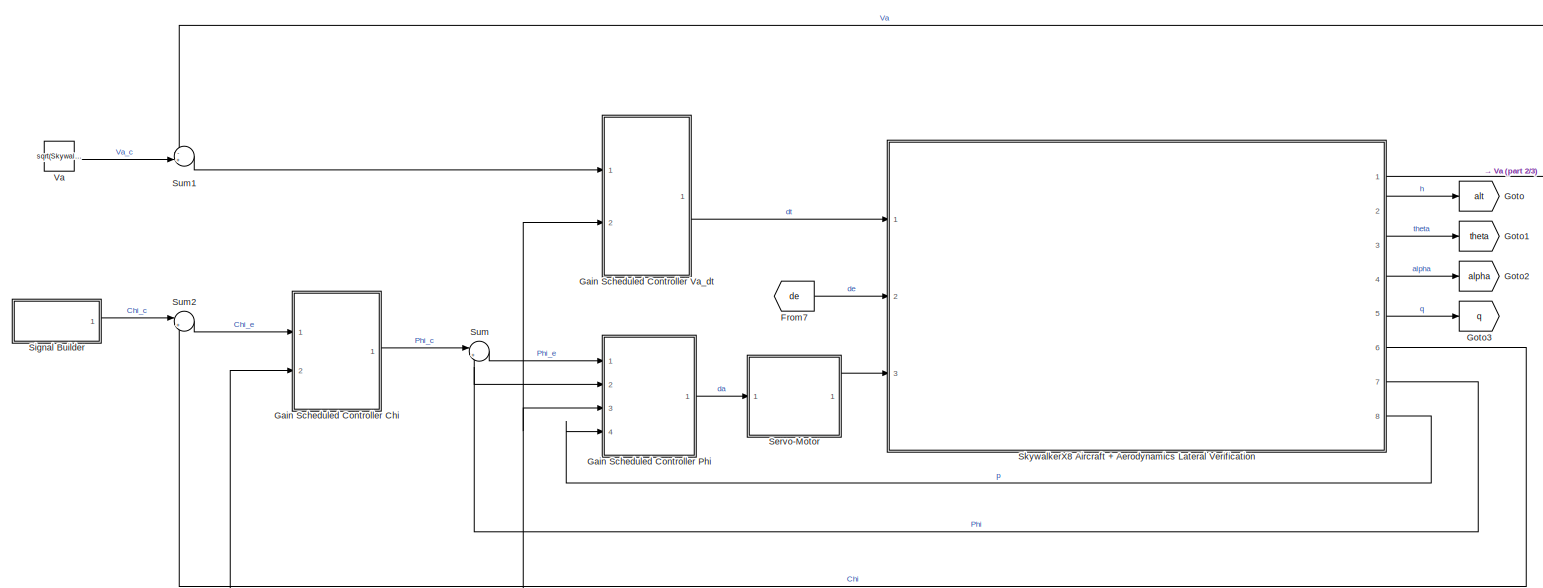
[diagram: root canvas - part 1/3, full width, middle band]
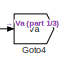
[diagram: root canvas - part 2/3, top right region]
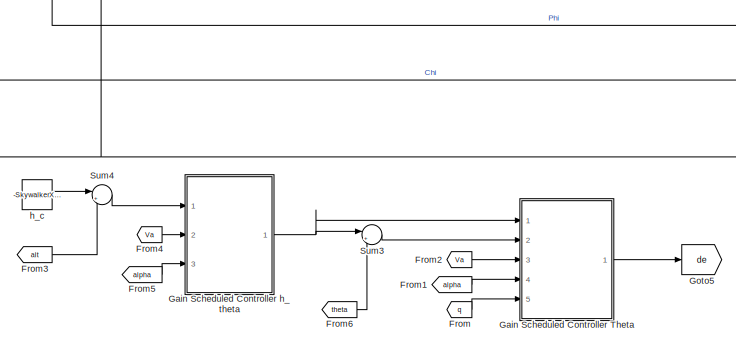
[diagram: root canvas - part 3/3, bottom center region]
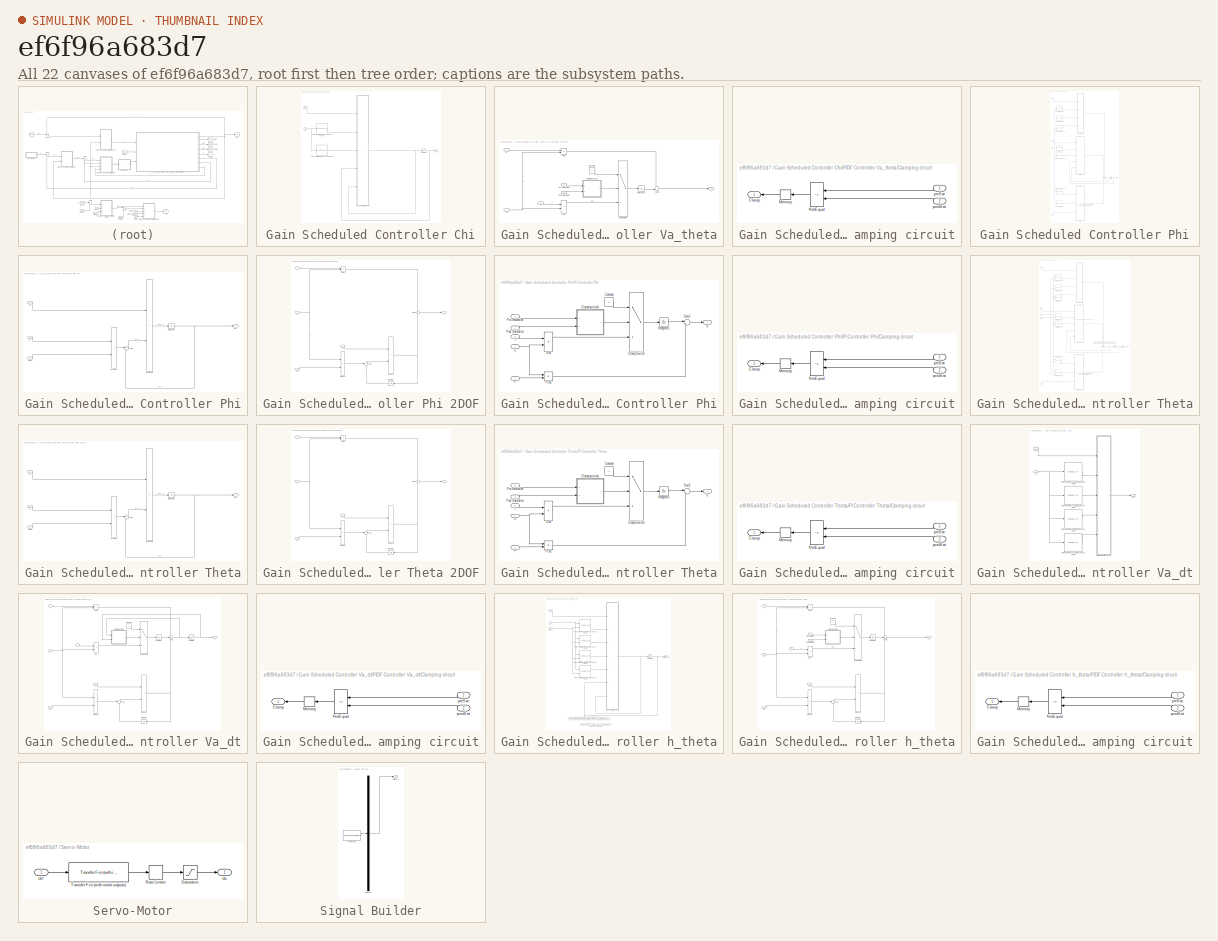
[diagram: thumbnail index - all 22 canvases of the model, root first then tree order]
MODEL slx_ef6f96a683d7
KIND model
CONFIG AbsTol = auto
CONFIG EnableMultiTasking = off
CONFIG FixedStep = auto
CONFIG MaxStep = auto
CONFIG MinStep = auto
CONFIG RelTol = 1e-3
CONFIG SampleTimeConstraint = Unconstrained
CONFIG Solver = FixedStepAuto
CONFIG SolverName = FixedStepAuto
CONFIG StartTime = 0.0
CONFIG StopTime = 30
BLOCK [From] From
  GotoTag = q
BLOCK [From] From1
  GotoTag = alpha
BLOCK [From] From2
  GotoTag = Va
BLOCK [From] From3
  GotoTag = alt
BLOCK [From] From4
  GotoTag = Va
BLOCK [From] From5
  GotoTag = alpha
BLOCK [From] From6
  GotoTag = theta
BLOCK [From] From7
  GotoTag = de
BLOCK [SubSystem] Gain Scheduled Controller Chi
  Ports = [2, 1]
  RequestExecContextInheritance = off
BLOCK [Inport] Gain Scheduled Controller Chi/Chi_e
  IconDisplay = Port number
BLOCK [Lookup_n-D] Gain Scheduled Controller Chi/PIDF Controller Chi Ki 2D Lookup Table
  BreakpointsForDimension1 = SkywalkerX8.Control.Lateral.SchedulingVariables.VaArray
  BreakpointsForDimension2 = SkywalkerX8.Control.Longitudinal.SchedulingVariables.alphaArray
  InternalRulePriority = Speed
  NumberOfTableDimensions = 1
  Ports = [1, 1]
  RndMeth = Simplest
  Table = SkywalkerX8.Control.Lateral.ChiController.KiChi
BLOCK [Lookup_n-D] Gain Scheduled Controller Chi/PIDF Controller Chi Kp 2D Lookup Table
  BreakpointsForDimension1 = SkywalkerX8.Control.Lateral.SchedulingVariables.VaArray
  BreakpointsForDimension2 = SkywalkerX8.Control.Longitudinal.SchedulingVariables.alphaArray
  InternalRulePriority = Speed
  NumberOfTableDimensions = 1
  Ports = [1, 1]
  RndMeth = Simplest
  Table = SkywalkerX8.Control.Lateral.ChiController.KpChi
BLOCK [SubSystem] Gain Scheduled Controller Chi/PIDF Controller Va_theta
  Ports = [5, 1]
  RequestExecContextInheritance = off
BLOCK [Switch] Gain Scheduled Controller Chi/PIDF Controller Va_theta/Clamp Switch
  Criteria = u2 ~= 0
  InputSameDT = off
  SaturateOnIntegerOverflow = off
BLOCK [SubSystem] Gain Scheduled Controller Chi/PIDF Controller Va_theta/Clamping circuit
  Ports = [2, 1]
  RequestExecContextInheritance = off
BLOCK [Outport] Gain Scheduled Controller Chi/PIDF Controller Va_theta/Clamping circuit/Clamp
  DisableCoverage = on
  IconDisplay = Port number
BLOCK [Memory] Gain Scheduled Controller Chi/PIDF Controller Va_theta/Clamping circuit/Memory
  DisableCoverage = on
BLOCK [RelationalOperator] Gain Scheduled Controller Chi/PIDF Controller Va_theta/Clamping circuit/NotEqual
  DisableCoverage = on
  Operator = ~=
  Ports = [2, 1]
BLOCK [Inport] Gain Scheduled Controller Chi/PIDF Controller Va_theta/Clamping circuit/postSat
  DisableCoverage = on
  IconDisplay = Port number
  Port = 2
BLOCK [Inport] Gain Scheduled Controller Chi/PIDF Controller Va_theta/Clamping circuit/preSat
  DisableCoverage = on
  IconDisplay = Port number
BLOCK [Constant] Gain Scheduled Controller Chi/PIDF Controller Va_theta/Constant
  Value = 0
BLOCK [Inport] Gain Scheduled Controller Chi/PIDF Controller Va_theta/I
  IconDisplay = Port number
  Port = 3
BLOCK [Product] Gain Scheduled Controller Chi/PIDF Controller Va_theta/IOut
  DisableCoverage = on
  InputSameDT = off
  OutDataTypeStr = Inherit: Inherit via internal rule
  Ports = [2, 1]
  RndMeth = Floor
  SaturateOnIntegerOverflow = off
BLOCK [Integrator] Gain Scheduled Controller Chi/PIDF Controller Va_theta/Integrator1
  IgnoreLimit = on
  Ports = [1, 1]
BLOCK [Inport] Gain Scheduled Controller Chi/PIDF Controller Va_theta/P
  IconDisplay = Port number
  Port = 2
BLOCK [Product] Gain Scheduled Controller Chi/PIDF Controller Va_theta/POut
  InputSameDT = off
  OutDataTypeStr = Inherit: Inherit via internal rule
  Ports = [2, 1]
  RndMeth = Floor
  SaturateOnIntegerOverflow = off
BLOCK [Inport] Gain Scheduled Controller Chi/PIDF Controller Va_theta/Post-Saturation
  IconDisplay = Port number
  Port = 4
BLOCK [Inport] Gain Scheduled Controller Chi/PIDF Controller Va_theta/Pre-Saturation
  IconDisplay = Port number
  Port = 5
BLOCK [Sum] Gain Scheduled Controller Chi/PIDF Controller Va_theta/Sum2
  IconShape = round
  InputSameDT = off
  Inputs = ++|
  OutDataTypeStr = Inherit: Inherit via internal rule
  Ports = [2, 1]
  SaturateOnIntegerOverflow = off
BLOCK [Inport] Gain Scheduled Controller Chi/PIDF Controller Va_theta/u
  IconDisplay = Port number
BLOCK [Outport] Gain Scheduled Controller Chi/PIDF Controller Va_theta/y
  IconDisplay = Port number
  InitialOutput = 0
BLOCK [Outport] Gain Scheduled Controller Chi/Phi_c
  IconDisplay = Port number
BLOCK [Saturate] Gain Scheduled Controller Chi/Saturation
  InputPortMap = u0
  LowerLimit = SkywalkerX8.Control.Lateral.ChiController.lowerSaturationPhiC
  Ports = [1, 1]
  UpperLimit = SkywalkerX8.Control.Lateral.ChiController.upperSaturationPhiC
BLOCK [Inport] Gain Scheduled Controller Chi/Va
  IconDisplay = Port number
  Port = 2
BLOCK [SubSystem] Gain Scheduled Controller Phi
  Ports = [4, 1]
  RequestExecContextInheritance = off
BLOCK [SubSystem] Gain Scheduled Controller Phi/DF Controller Phi
  Ports = [3, 1]
  RequestExecContextInheritance = off
BLOCK [Inport] Gain Scheduled Controller Phi/DF Controller Phi/D
  IconDisplay = Port number
  Port = 2
BLOCK [Integrator] Gain Scheduled Controller Phi/DF Controller Phi/Integrator
  Ports = [1, 1]
BLOCK [Inport] Gain Scheduled Controller Phi/DF Controller Phi/N
  IconDisplay = Port number
BLOCK [Product] Gain Scheduled Controller Phi/DF Controller Phi/Product
  InputSameDT = off
  OutDataTypeStr = Inherit: Inherit via internal rule
  Ports = [2, 1]
  RndMeth = Floor
  SaturateOnIntegerOverflow = off
BLOCK [Product] Gain Scheduled Controller Phi/DF Controller Phi/Product1
  InputSameDT = off
  OutDataTypeStr = Inherit: Inherit via internal rule
  Ports = [2, 1]
  RndMeth = Floor
  SaturateOnIntegerOverflow = off
BLOCK [Sum] Gain Scheduled Controller Phi/DF Controller Phi/Sum
  IconShape = round
  InputSameDT = off
  Inputs = |+-
  OutDataTypeStr = Inherit: Inherit via internal rule
  Ports = [2, 1]
  SaturateOnIntegerOverflow = off
BLOCK [Outport] Gain Scheduled Controller Phi/DF Controller Phi/da*
  IconDisplay = Port number
BLOCK [Inport] Gain Scheduled Controller Phi/DF Controller Phi/du//dt
  IconDisplay = Port number
  Port = 3
BLOCK [SubSystem] Gain Scheduled Controller Phi/PDF Controller Phi 2DOF
  Ports = [4, 1]
  RequestExecContextInheritance = off
BLOCK [Lookup_n-D] Gain Scheduled Controller Phi/PDF Controller Phi 2DOF Kd 2D Lookup Table
  BreakpointsForDimension1 = SkywalkerX8.Control.Lateral.SchedulingVariables.VaArray
  BreakpointsForDimension2 = SkywalkerX8.Control.Longitudinal.SchedulingVariables.alphaArray
  InternalRulePriority = Speed
  NumberOfTableDimensions = 1
  Ports = [1, 1]
  RndMeth = Simplest
  Table = SkywalkerX8.Control.Lateral.PhiController.KdPhi2DOF
BLOCK [Lookup_n-D] Gain Scheduled Controller Phi/PDF Controller Phi 2DOF Kp 2D Lookup Table
  BreakpointsForDimension1 = SkywalkerX8.Control.Lateral.SchedulingVariables.VaArray
  BreakpointsForDimension2 = SkywalkerX8.Control.Longitudinal.SchedulingVariables.alphaArray
  InternalRulePriority = Speed
  NumberOfTableDimensions = 1
  Ports = [1, 1]
  RndMeth = Simplest
  Table = SkywalkerX8.Control.Lateral.PhiController.KpPhi2DOF
BLOCK [Lookup_n-D] Gain Scheduled Controller Phi/PDF Controller Phi 2DOF N 2D Lookup Table
  BreakpointsForDimension1 = SkywalkerX8.Control.Lateral.SchedulingVariables.VaArray
  BreakpointsForDimension2 = SkywalkerX8.Control.Longitudinal.SchedulingVariables.alphaArray
  InternalRulePriority = Speed
  NumberOfTableDimensions = 1
  Ports = [1, 1]
  RndMeth = Simplest
  Table = SkywalkerX8.Control.Lateral.PhiController.NPhi2DOF
BLOCK [Inport] Gain Scheduled Controller Phi/PDF Controller Phi 2DOF/D
  IconDisplay = Port number
  Port = 3
BLOCK [Integrator] Gain Scheduled Controller Phi/PDF Controller Phi 2DOF/Integrator
  Ports = [1, 1]
BLOCK [Inport] Gain Scheduled Controller Phi/PDF Controller Phi 2DOF/N
  IconDisplay = Port number
  Port = 4
BLOCK [Inport] Gain Scheduled Controller Phi/PDF Controller Phi 2DOF/P
  IconDisplay = Port number
  Port = 2
BLOCK [Product] Gain Scheduled Controller Phi/PDF Controller Phi 2DOF/POut
  InputSameDT = off
  OutDataTypeStr = Inherit: Inherit via internal rule
  Ports = [2, 1]
  RndMeth = Floor
  SaturateOnIntegerOverflow = off
BLOCK [Product] Gain Scheduled Controller Phi/PDF Controller Phi 2DOF/Product
  InputSameDT = off
  OutDataTypeStr = Inherit: Inherit via internal rule
  Ports = [2, 1]
  RndMeth = Floor
  SaturateOnIntegerOverflow = off
BLOCK [Product] Gain Scheduled Controller Phi/PDF Controller Phi 2DOF/Product1
  InputSameDT = off
  OutDataTypeStr = Inherit: Inherit via internal rule
  Ports = [2, 1]
  RndMeth = Floor
  SaturateOnIntegerOverflow = off
BLOCK [Sum] Gain Scheduled Controller Phi/PDF Controller Phi 2DOF/Sum
  IconShape = round
  InputSameDT = off
  Inputs = |+-
  OutDataTypeStr = Inherit: Inherit via internal rule
  Ports = [2, 1]
  SaturateOnIntegerOverflow = off
BLOCK [Sum] Gain Scheduled Controller Phi/PDF Controller Phi 2DOF/Sum2
  IconShape = round
  InputSameDT = off
  OutDataTypeStr = Inherit: Inherit via internal rule
  Ports = [2, 1]
  SaturateOnIntegerOverflow = off
BLOCK [Inport] Gain Scheduled Controller Phi/PDF Controller Phi 2DOF/u
  IconDisplay = Port number
BLOCK [Outport] Gain Scheduled Controller Phi/PDF Controller Phi 2DOF/y
  IconDisplay = Port number
  InitialOutput = 0
BLOCK [SubSystem] Gain Scheduled Controller Phi/PI Controller Phi
  Ports = [5, 1]
  RequestExecContextInheritance = off
BLOCK [Switch] Gain Scheduled Controller Phi/PI Controller Phi/Clamp Switch
  Criteria = u2 ~= 0
  InputSameDT = off
  SaturateOnIntegerOverflow = off
BLOCK [SubSystem] Gain Scheduled Controller Phi/PI Controller Phi/Clamping circuit
  Ports = [2, 1]
  RequestExecContextInheritance = off
BLOCK [Outport] Gain Scheduled Controller Phi/PI Controller Phi/Clamping circuit/Clamp
  DisableCoverage = on
  IconDisplay = Port number
BLOCK [Memory] Gain Scheduled Controller Phi/PI Controller Phi/Clamping circuit/Memory
  DisableCoverage = on
BLOCK [RelationalOperator] Gain Scheduled Controller Phi/PI Controller Phi/Clamping circuit/NotEqual
  DisableCoverage = on
  Operator = ~=
  Ports = [2, 1]
BLOCK [Inport] Gain Scheduled Controller Phi/PI Controller Phi/Clamping circuit/postSat
  DisableCoverage = on
  IconDisplay = Port number
  Port = 2
BLOCK [Inport] Gain Scheduled Controller Phi/PI Controller Phi/Clamping circuit/preSat
  DisableCoverage = on
  IconDisplay = Port number
BLOCK [Constant] Gain Scheduled Controller Phi/PI Controller Phi/Constant
  Value = 0
BLOCK [Inport] Gain Scheduled Controller Phi/PI Controller Phi/I
  IconDisplay = Port number
  Port = 3
BLOCK [Product] Gain Scheduled Controller Phi/PI Controller Phi/IOut
  DisableCoverage = on
  InputSameDT = off
  OutDataTypeStr = Inherit: Inherit via internal rule
  Ports = [2, 1]
  RndMeth = Floor
  SaturateOnIntegerOverflow = off
BLOCK [Integrator] Gain Scheduled Controller Phi/PI Controller Phi/Integrator1
  IgnoreLimit = on
  InitialCondition = SkywalkerX8.InitialConditions.da
  Ports = [1, 1]
BLOCK [Inport] Gain Scheduled Controller Phi/PI Controller Phi/P
  IconDisplay = Port number
  Port = 2
BLOCK [Product] Gain Scheduled Controller Phi/PI Controller Phi/POut
  InputSameDT = off
  OutDataTypeStr = Inherit: Inherit via internal rule
  Ports = [2, 1]
  RndMeth = Floor
  SaturateOnIntegerOverflow = off
BLOCK [Inport] Gain Scheduled Controller Phi/PI Controller Phi/Post-Saturation
  IconDisplay = Port number
  Port = 4
BLOCK [Inport] Gain Scheduled Controller Phi/PI Controller Phi/Pre-Saturation
  IconDisplay = Port number
  Port = 5
BLOCK [Sum] Gain Scheduled Controller Phi/PI Controller Phi/Sum2
  IconShape = round
  InputSameDT = off
  Inputs = |++
  OutDataTypeStr = Inherit: Inherit via internal rule
  Ports = [2, 1]
  SaturateOnIntegerOverflow = off
BLOCK [Inport] Gain Scheduled Controller Phi/PI Controller Phi/u
  IconDisplay = Port number
BLOCK [Outport] Gain Scheduled Controller Phi/PI Controller Phi/y
  IconDisplay = Port number
  InitialOutput = 0
BLOCK [Lookup_n-D] Gain Scheduled Controller Phi/PIDF Controller Phi Kd 2D Lookup Table
  BreakpointsForDimension1 = SkywalkerX8.Control.Lateral.SchedulingVariables.VaArray
  BreakpointsForDimension2 = SkywalkerX8.Control.Longitudinal.SchedulingVariables.alphaArray
  InternalRulePriority = Speed
  NumberOfTableDimensions = 1
  Ports = [1, 1]
  RndMeth = Simplest
  Table = SkywalkerX8.Control.Lateral.PhiController.KdPhi
BLOCK [Lookup_n-D] Gain Scheduled Controller Phi/PIDF Controller Phi Ki 2D Lookup Table
  BreakpointsForDimension1 = SkywalkerX8.Control.Lateral.SchedulingVariables.VaArray
  BreakpointsForDimension2 = SkywalkerX8.Control.Longitudinal.SchedulingVariables.alphaArray
  InternalRulePriority = Speed
  NumberOfTableDimensions = 1
  Ports = [1, 1]
  RndMeth = Simplest
  Table = SkywalkerX8.Control.Lateral.PhiController.KiPhi
BLOCK [Lookup_n-D] Gain Scheduled Controller Phi/PIDF Controller Phi Kp 2D Lookup Table
  BreakpointsForDimension1 = SkywalkerX8.Control.Lateral.SchedulingVariables.VaArray
  BreakpointsForDimension2 = SkywalkerX8.Control.Longitudinal.SchedulingVariables.alphaArray
  InternalRulePriority = Speed
  NumberOfTableDimensions = 1
  Ports = [1, 1]
  RndMeth = Simplest
  Table = SkywalkerX8.Control.Lateral.PhiController.KpPhi
BLOCK [Lookup_n-D] Gain Scheduled Controller Phi/PIDF Controller Phi N 2D Lookup Table
  BreakpointsForDimension1 = SkywalkerX8.Control.Lateral.SchedulingVariables.VaArray
  BreakpointsForDimension2 = SkywalkerX8.Control.Longitudinal.SchedulingVariables.alphaArray
  InternalRulePriority = Speed
  NumberOfTableDimensions = 1
  Ports = [1, 1]
  RndMeth = Simplest
  Table = SkywalkerX8.Control.Lateral.PhiController.NPhi
BLOCK [Inport] Gain Scheduled Controller Phi/Phi
  IconDisplay = Port number
  Port = 2
BLOCK [Inport] Gain Scheduled Controller Phi/Phi_e
  IconDisplay = Port number
BLOCK [Saturate] Gain Scheduled Controller Phi/Saturation
  InputPortMap = u0
  LowerLimit = SkywalkerX8.Control.Lateral.PhiController.lowerSaturationDa
  Ports = [1, 1]
  UpperLimit = SkywalkerX8.Control.Lateral.PhiController.upperSaturationDa
BLOCK [Sum] Gain Scheduled Controller Phi/Sum1
  IconShape = round
  InputSameDT = off
  Inputs = +++|
  OutDataTypeStr = Inherit: Inherit via internal rule
  Ports = [3, 1]
  SaturateOnIntegerOverflow = off
BLOCK [Inport] Gain Scheduled Controller Phi/Va
  IconDisplay = Port number
  Port = 3
BLOCK [Outport] Gain Scheduled Controller Phi/da
  IconDisplay = Port number
BLOCK [Inport] Gain Scheduled Controller Phi/p
  IconDisplay = Port number
  Port = 4
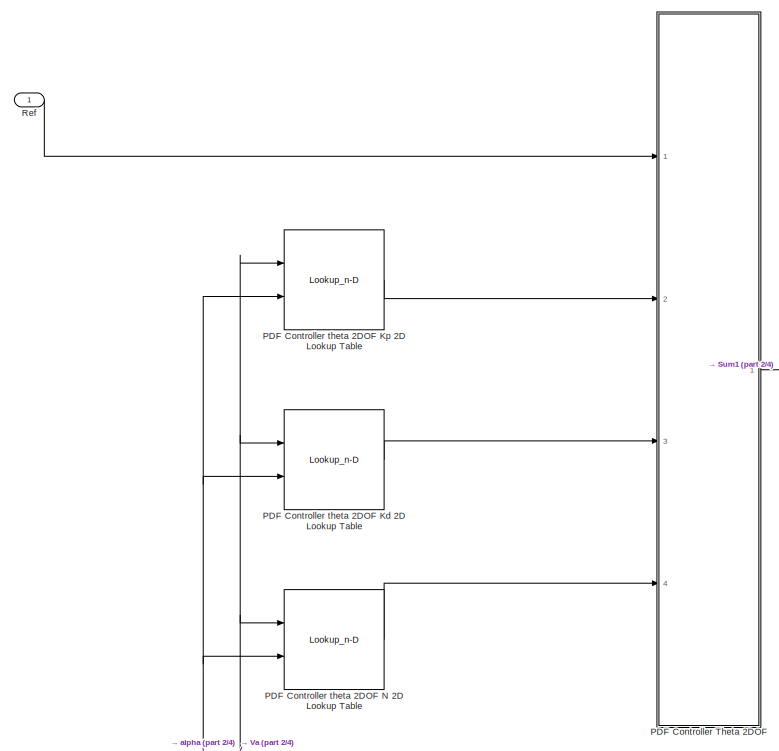
[diagram: Gain Scheduled Controller Theta - part 1/4, top left region]
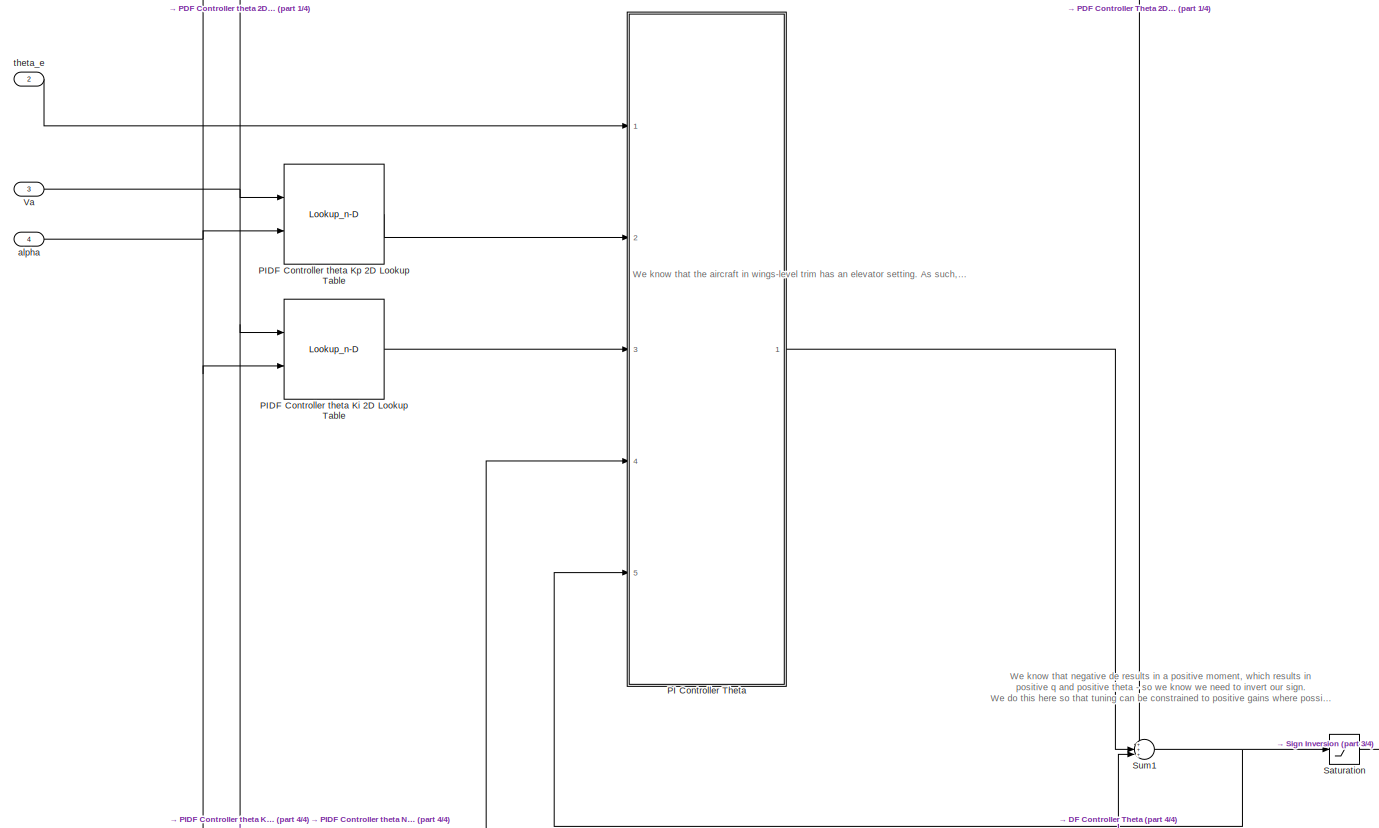
[diagram: Gain Scheduled Controller Theta - part 2/4, full width, middle band]
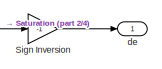
[diagram: Gain Scheduled Controller Theta - part 3/4, middle right region]
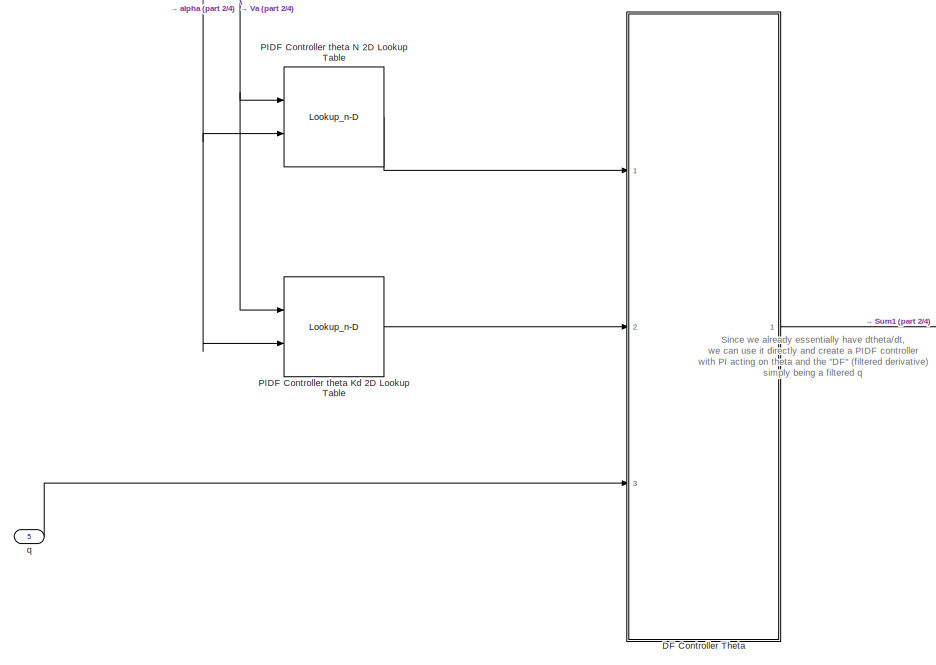
[diagram: Gain Scheduled Controller Theta - part 4/4, bottom left region]
BLOCK [SubSystem] Gain Scheduled Controller Theta
  Ports = [5, 1]
  RequestExecContextInheritance = off
BLOCK [SubSystem] Gain Scheduled Controller Theta/DF Controller Theta
  Ports = [3, 1]
  RequestExecContextInheritance = off
BLOCK [Inport] Gain Scheduled Controller Theta/DF Controller Theta/D
  IconDisplay = Port number
  Port = 2
BLOCK [Integrator] Gain Scheduled Controller Theta/DF Controller Theta/Integrator
  Ports = [1, 1]
BLOCK [Inport] Gain Scheduled Controller Theta/DF Controller Theta/N
  IconDisplay = Port number
BLOCK [Product] Gain Scheduled Controller Theta/DF Controller Theta/Product
  InputSameDT = off
  OutDataTypeStr = Inherit: Inherit via internal rule
  Ports = [2, 1]
  RndMeth = Floor
  SaturateOnIntegerOverflow = off
BLOCK [Product] Gain Scheduled Controller Theta/DF Controller Theta/Product1
  InputSameDT = off
  OutDataTypeStr = Inherit: Inherit via internal rule
  Ports = [2, 1]
  RndMeth = Floor
  SaturateOnIntegerOverflow = off
BLOCK [Sum] Gain Scheduled Controller Theta/DF Controller Theta/Sum
  IconShape = round
  InputSameDT = off
  Inputs = |+-
  OutDataTypeStr = Inherit: Inherit via internal rule
  Ports = [2, 1]
  SaturateOnIntegerOverflow = off
BLOCK [Outport] Gain Scheduled Controller Theta/DF Controller Theta/de*
  IconDisplay = Port number
BLOCK [Inport] Gain Scheduled Controller Theta/DF Controller Theta/du//dt
  IconDisplay = Port number
  Port = 3
BLOCK [SubSystem] Gain Scheduled Controller Theta/PDF Controller Theta 2DOF
  Ports = [4, 1]
  RequestExecContextInheritance = off
BLOCK [Inport] Gain Scheduled Controller Theta/PDF Controller Theta 2DOF/D
  IconDisplay = Port number
  Port = 3
BLOCK [Integrator] Gain Scheduled Controller Theta/PDF Controller Theta 2DOF/Integrator
  InitialCondition = SkywalkerX8.InitialConditions.ThetaController.RefController.Derivative
  Ports = [1, 1]
BLOCK [Inport] Gain Scheduled Controller Theta/PDF Controller Theta 2DOF/N
  IconDisplay = Port number
  Port = 4
BLOCK [Inport] Gain Scheduled Controller Theta/PDF Controller Theta 2DOF/P
  IconDisplay = Port number
  Port = 2
BLOCK [Product] Gain Scheduled Controller Theta/PDF Controller Theta 2DOF/POut
  InputSameDT = off
  OutDataTypeStr = Inherit: Inherit via internal rule
  Ports = [2, 1]
  RndMeth = Floor
  SaturateOnIntegerOverflow = off
BLOCK [Product] Gain Scheduled Controller Theta/PDF Controller Theta 2DOF/Product
  InputSameDT = off
  OutDataTypeStr = Inherit: Inherit via internal rule
  Ports = [2, 1]
  RndMeth = Floor
  SaturateOnIntegerOverflow = off
BLOCK [Product] Gain Scheduled Controller Theta/PDF Controller Theta 2DOF/Product1
  InputSameDT = off
  OutDataTypeStr = Inherit: Inherit via internal rule
  Ports = [2, 1]
  RndMeth = Floor
  SaturateOnIntegerOverflow = off
BLOCK [Sum] Gain Scheduled Controller Theta/PDF Controller Theta 2DOF/Sum
  IconShape = round
  InputSameDT = off
  Inputs = |+-
  OutDataTypeStr = Inherit: Inherit via internal rule
  Ports = [2, 1]
  SaturateOnIntegerOverflow = off
BLOCK [Sum] Gain Scheduled Controller Theta/PDF Controller Theta 2DOF/Sum2
  IconShape = round
  InputSameDT = off
  OutDataTypeStr = Inherit: Inherit via internal rule
  Ports = [2, 1]
  SaturateOnIntegerOverflow = off
BLOCK [Inport] Gain Scheduled Controller Theta/PDF Controller Theta 2DOF/u
  IconDisplay = Port number
BLOCK [Outport] Gain Scheduled Controller Theta/PDF Controller Theta 2DOF/y
  IconDisplay = Port number
  InitialOutput = 0
BLOCK [Lookup_n-D] Gain Scheduled Controller Theta/PDF Controller theta 2DOF Kd 2D Lookup Table
  BreakpointsForDimension1 = SkywalkerX8.Control.Longitudinal.SchedulingVariables.VaArray
  BreakpointsForDimension2 = SkywalkerX8.Control.Longitudinal.SchedulingVariables.alphaArray
  InternalRulePriority = Speed
  Ports = [2, 1]
  RndMeth = Simplest
  Table = SkywalkerX8.Control.Longitudinal.thetaController.KdTheta2DOF
BLOCK [Lookup_n-D] Gain Scheduled Controller Theta/PDF Controller theta 2DOF Kp 2D Lookup Table
  BreakpointsForDimension1 = SkywalkerX8.Control.Longitudinal.SchedulingVariables.VaArray
  BreakpointsForDimension2 = SkywalkerX8.Control.Longitudinal.SchedulingVariables.alphaArray
  InternalRulePriority = Speed
  Ports = [2, 1]
  RndMeth = Simplest
  Table = SkywalkerX8.Control.Longitudinal.thetaController.KpTheta2DOF
BLOCK [Lookup_n-D] Gain Scheduled Controller Theta/PDF Controller theta 2DOF N 2D Lookup Table
  BreakpointsForDimension1 = SkywalkerX8.Control.Longitudinal.SchedulingVariables.VaArray
  BreakpointsForDimension2 = SkywalkerX8.Control.Longitudinal.SchedulingVariables.alphaArray
  InternalRulePriority = Speed
  Ports = [2, 1]
  RndMeth = Simplest
  Table = SkywalkerX8.Control.Longitudinal.thetaController.NTheta2DOF
BLOCK [SubSystem] Gain Scheduled Controller Theta/PI Controller Theta
  Ports = [5, 1]
  RequestExecContextInheritance = off
BLOCK [Switch] Gain Scheduled Controller Theta/PI Controller Theta/Clamp Switch
  Criteria = u2 ~= 0
  InputSameDT = off
  SaturateOnIntegerOverflow = off
BLOCK [SubSystem] Gain Scheduled Controller Theta/PI Controller Theta/Clamping circuit
  Ports = [2, 1]
  RequestExecContextInheritance = off
BLOCK [Outport] Gain Scheduled Controller Theta/PI Controller Theta/Clamping circuit/Clamp
  DisableCoverage = on
  IconDisplay = Port number
BLOCK [Memory] Gain Scheduled Controller Theta/PI Controller Theta/Clamping circuit/Memory
  DisableCoverage = on
BLOCK [RelationalOperator] Gain Scheduled Controller Theta/PI Controller Theta/Clamping circuit/NotEqual
  DisableCoverage = on
  Operator = ~=
  Ports = [2, 1]
BLOCK [Inport] Gain Scheduled Controller Theta/PI Controller Theta/Clamping circuit/postSat
  DisableCoverage = on
  IconDisplay = Port number
  Port = 2
BLOCK [Inport] Gain Scheduled Controller Theta/PI Controller Theta/Clamping circuit/preSat
  DisableCoverage = on
  IconDisplay = Port number
BLOCK [Constant] Gain Scheduled Controller Theta/PI Controller Theta/Constant
  Value = 0
BLOCK [Inport] Gain Scheduled Controller Theta/PI Controller Theta/I
  IconDisplay = Port number
  Port = 3
BLOCK [Product] Gain Scheduled Controller Theta/PI Controller Theta/IOut
  DisableCoverage = on
  InputSameDT = off
  OutDataTypeStr = Inherit: Inherit via internal rule
  Ports = [2, 1]
  RndMeth = Floor
  SaturateOnIntegerOverflow = off
BLOCK [Integrator] Gain Scheduled Controller Theta/PI Controller Theta/Integrator1
  IgnoreLimit = on
  InitialCondition = SkywalkerX8.InitialConditions.ThetaController.Integrator
  Ports = [1, 1]
BLOCK [Inport] Gain Scheduled Controller Theta/PI Controller Theta/P
  IconDisplay = Port number
  Port = 2
BLOCK [Product] Gain Scheduled Controller Theta/PI Controller Theta/POut
  InputSameDT = off
  OutDataTypeStr = Inherit: Inherit via internal rule
  Ports = [2, 1]
  RndMeth = Floor
  SaturateOnIntegerOverflow = off
BLOCK [Inport] Gain Scheduled Controller Theta/PI Controller Theta/Post-Saturation
  IconDisplay = Port number
  Port = 4
BLOCK [Inport] Gain Scheduled Controller Theta/PI Controller Theta/Pre-Saturation
  IconDisplay = Port number
  Port = 5
BLOCK [Sum] Gain Scheduled Controller Theta/PI Controller Theta/Sum2
  IconShape = round
  InputSameDT = off
  Inputs = |++
  OutDataTypeStr = Inherit: Inherit via internal rule
  Ports = [2, 1]
  SaturateOnIntegerOverflow = off
BLOCK [Inport] Gain Scheduled Controller Theta/PI Controller Theta/u
  IconDisplay = Port number
BLOCK [Outport] Gain Scheduled Controller Theta/PI Controller Theta/y
  IconDisplay = Port number
  InitialOutput = 0
BLOCK [Lookup_n-D] Gain Scheduled Controller Theta/PIDF Controller theta Kd 2D Lookup Table
  BreakpointsForDimension1 = SkywalkerX8.Control.Longitudinal.SchedulingVariables.VaArray
  BreakpointsForDimension2 = SkywalkerX8.Control.Longitudinal.SchedulingVariables.alphaArray
  InternalRulePriority = Speed
  Ports = [2, 1]
  RndMeth = Simplest
  Table = SkywalkerX8.Control.Longitudinal.thetaController.KdTheta
BLOCK [Lookup_n-D] Gain Scheduled Controller Theta/PIDF Controller theta Ki 2D Lookup Table
  BreakpointsForDimension1 = SkywalkerX8.Control.Longitudinal.SchedulingVariables.VaArray
  BreakpointsForDimension2 = SkywalkerX8.Control.Longitudinal.SchedulingVariables.alphaArray
  InternalRulePriority = Speed
  Ports = [2, 1]
  RndMeth = Simplest
  Table = SkywalkerX8.Control.Longitudinal.thetaController.KiTheta
BLOCK [Lookup_n-D] Gain Scheduled Controller Theta/PIDF Controller theta Kp 2D Lookup Table
  BreakpointsForDimension1 = SkywalkerX8.Control.Longitudinal.SchedulingVariables.VaArray
  BreakpointsForDimension2 = SkywalkerX8.Control.Longitudinal.SchedulingVariables.alphaArray
  InternalRulePriority = Speed
  Ports = [2, 1]
  RndMeth = Simplest
  Table = SkywalkerX8.Control.Longitudinal.thetaController.KpTheta
BLOCK [Lookup_n-D] Gain Scheduled Controller Theta/PIDF Controller theta N 2D Lookup Table
  BreakpointsForDimension1 = SkywalkerX8.Control.Longitudinal.SchedulingVariables.VaArray
  BreakpointsForDimension2 = SkywalkerX8.Control.Longitudinal.SchedulingVariables.alphaArray
  InternalRulePriority = Speed
  Ports = [2, 1]
  RndMeth = Simplest
  Table = SkywalkerX8.Control.Longitudinal.thetaController.NTheta
BLOCK [Inport] Gain Scheduled Controller Theta/Ref
  IconDisplay = Port number
BLOCK [Saturate] Gain Scheduled Controller Theta/Saturation
  InputPortMap = u0
  LowerLimit = SkywalkerX8.Control.Longitudinal.thetaController.lowerSaturationNegativeDe
  Ports = [1, 1]
  UpperLimit = SkywalkerX8.Control.Longitudinal.thetaController.upperSaturationNegativeDe
BLOCK [Gain] Gain Scheduled Controller Theta/Sign Inversion
  Gain = -1
  OutDataTypeStr = Inherit: Inherit via internal rule
  ParamDataTypeStr = Inherit: Inherit via internal rule
  SaturateOnIntegerOverflow = off
BLOCK [Sum] Gain Scheduled Controller Theta/Sum1
  IconShape = round
  InputSameDT = off
  Inputs = +++|
  OutDataTypeStr = Inherit: Inherit via internal rule
  Ports = [3, 1]
  SaturateOnIntegerOverflow = off
BLOCK [Inport] Gain Scheduled Controller Theta/Va
  IconDisplay = Port number
  Port = 3
BLOCK [Inport] Gain Scheduled Controller Theta/alpha
  IconDisplay = Port number
  Port = 4
BLOCK [Outport] Gain Scheduled Controller Theta/de
  IconDisplay = Port number
BLOCK [Inport] Gain Scheduled Controller Theta/q
  IconDisplay = Port number
  Port = 5
BLOCK [Inport] Gain Scheduled Controller Theta/theta_e
  IconDisplay = Port number
  Port = 2
BLOCK [SubSystem] Gain Scheduled Controller Va_dt
  Ports = [2, 1]
  RequestExecContextInheritance = off
BLOCK [SubSystem] Gain Scheduled Controller Va_dt/PIDF Controller Va_dt
  Ports = [5, 1]
  RequestExecContextInheritance = off
BLOCK [Lookup_n-D] Gain Scheduled Controller Va_dt/PIDF Controller Va_dt Kd 2D Lookup Table
  BreakpointsForDimension1 = SkywalkerX8.Control.Longitudinal.SchedulingVariables.VaArray
  BreakpointsForDimension2 = [1 2 3 4 5]
  InternalRulePriority = Speed
  NumberOfTableDimensions = 1
  Ports = [1, 1]
  RndMeth = Simplest
  Table = SkywalkerX8.Control.Longitudinal.VaDtController.KdVaDt
BLOCK [Lookup_n-D] Gain Scheduled Controller Va_dt/PIDF Controller Va_dt Ki 2D Lookup Table
  BreakpointsForDimension1 = SkywalkerX8.Control.Longitudinal.SchedulingVariables.VaArray
  BreakpointsForDimension2 = [1 2 3 4 5]
  InternalRulePriority = Speed
  NumberOfTableDimensions = 1
  Ports = [1, 1]
  RndMeth = Simplest
  Table = SkywalkerX8.Control.Longitudinal.VaDtController.KiVaDt
BLOCK [Lookup_n-D] Gain Scheduled Controller Va_dt/PIDF Controller Va_dt Kp 2D Lookup Table
  BreakpointsForDimension1 = SkywalkerX8.Control.Longitudinal.SchedulingVariables.VaArray
  BreakpointsForDimension2 = [1 2 3 4 5]
  InternalRulePriority = Speed
  NumberOfTableDimensions = 1
  Ports = [1, 1]
  RndMeth = Simplest
  Table = SkywalkerX8.Control.Longitudinal.VaDtController.KpVaDt
BLOCK [Lookup_n-D] Gain Scheduled Controller Va_dt/PIDF Controller Va_dt N 2D Lookup Table
  BreakpointsForDimension1 = SkywalkerX8.Control.Longitudinal.SchedulingVariables.VaArray
  BreakpointsForDimension2 = [1 2 3 4 5]
  InternalRulePriority = Speed
  NumberOfTableDimensions = 1
  Ports = [1, 1]
  RndMeth = Simplest
  Table = SkywalkerX8.Control.Longitudinal.VaDtController.NVaDt
BLOCK [Switch] Gain Scheduled Controller Va_dt/PIDF Controller Va_dt/Clamp Switch
  Criteria = u2 ~= 0
  InputSameDT = off
  SaturateOnIntegerOverflow = off
BLOCK [SubSystem] Gain Scheduled Controller Va_dt/PIDF Controller Va_dt/Clamping circuit
  Ports = [2, 1]
  RequestExecContextInheritance = off
BLOCK [Outport] Gain Scheduled Controller Va_dt/PIDF Controller Va_dt/Clamping circuit/Clamp
  DisableCoverage = on
  IconDisplay = Port number
BLOCK [Memory] Gain Scheduled Controller Va_dt/PIDF Controller Va_dt/Clamping circuit/Memory
  DisableCoverage = on
BLOCK [RelationalOperator] Gain Scheduled Controller Va_dt/PIDF Controller Va_dt/Clamping circuit/NotEqual
  DisableCoverage = on
  Operator = ~=
  Ports = [2, 1]
BLOCK [Inport] Gain Scheduled Controller Va_dt/PIDF Controller Va_dt/Clamping circuit/postSat
  DisableCoverage = on
  IconDisplay = Port number
  Port = 2
BLOCK [Inport] Gain Scheduled Controller Va_dt/PIDF Controller Va_dt/Clamping circuit/preSat
  DisableCoverage = on
  IconDisplay = Port number
BLOCK [Constant] Gain Scheduled Controller Va_dt/PIDF Controller Va_dt/Constant
  Value = 0
BLOCK [Inport] Gain Scheduled Controller Va_dt/PIDF Controller Va_dt/D
  IconDisplay = Port number
  Port = 4
BLOCK [Inport] Gain Scheduled Controller Va_dt/PIDF Controller Va_dt/I
  IconDisplay = Port number
  Port = 3
BLOCK [Product] Gain Scheduled Controller Va_dt/PIDF Controller Va_dt/IOut
  DisableCoverage = on
  InputSameDT = off
  OutDataTypeStr = Inherit: Inherit via internal rule
  Ports = [2, 1]
  RndMeth = Floor
  SaturateOnIntegerOverflow = off
BLOCK [Integrator] Gain Scheduled Controller Va_dt/PIDF Controller Va_dt/Integrator
  Ports = [1, 1]
BLOCK [Integrator] Gain Scheduled Controller Va_dt/PIDF Controller Va_dt/Integrator1
  IgnoreLimit = on
  InitialCondition = SkywalkerX8.InitialConditions.dt
  Ports = [1, 1]
BLOCK [Inport] Gain Scheduled Controller Va_dt/PIDF Controller Va_dt/N
  IconDisplay = Port number
  Port = 5
BLOCK [Inport] Gain Scheduled Controller Va_dt/PIDF Controller Va_dt/P
  IconDisplay = Port number
  Port = 2
BLOCK [Product] Gain Scheduled Controller Va_dt/PIDF Controller Va_dt/POut
  InputSameDT = off
  OutDataTypeStr = Inherit: Inherit via internal rule
  Ports = [2, 1]
  RndMeth = Floor
  SaturateOnIntegerOverflow = off
BLOCK [Product] Gain Scheduled Controller Va_dt/PIDF Controller Va_dt/Product
  InputSameDT = off
  OutDataTypeStr = Inherit: Inherit via internal rule
  Ports = [2, 1]
  RndMeth = Floor
  SaturateOnIntegerOverflow = off
BLOCK [Product] Gain Scheduled Controller Va_dt/PIDF Controller Va_dt/Product1
  InputSameDT = off
  OutDataTypeStr = Inherit: Inherit via internal rule
  Ports = [2, 1]
  RndMeth = Floor
  SaturateOnIntegerOverflow = off
BLOCK [Saturate] Gain Scheduled Controller Va_dt/PIDF Controller Va_dt/Saturation
  InputPortMap = u0
  LowerLimit = SkywalkerX8.Control.Longitudinal.VaDtController.lowerSaturationDt
  Ports = [1, 1]
  UpperLimit = SkywalkerX8.Control.Longitudinal.VaDtController.upperSaturationDt
BLOCK [Sum] Gain Scheduled Controller Va_dt/PIDF Controller Va_dt/Sum
  IconShape = round
  InputSameDT = off
  Inputs = |+-
  OutDataTypeStr = Inherit: Inherit via internal rule
  Ports = [2, 1]
  SaturateOnIntegerOverflow = off
BLOCK [Sum] Gain Scheduled Controller Va_dt/PIDF Controller Va_dt/Sum2
  IconShape = round
  InputSameDT = off
  Inputs = +++
  OutDataTypeStr = Inherit: Inherit via internal rule
  Ports = [3, 1]
  SaturateOnIntegerOverflow = off
BLOCK [Inport] Gain Scheduled Controller Va_dt/PIDF Controller Va_dt/u
  IconDisplay = Port number
BLOCK [Outport] Gain Scheduled Controller Va_dt/PIDF Controller Va_dt/y
  IconDisplay = Port number
  InitialOutput = 0
BLOCK [Inport] Gain Scheduled Controller Va_dt/Va
  IconDisplay = Port number
  Port = 2
BLOCK [Inport] Gain Scheduled Controller Va_dt/Va_e
  IconDisplay = Port number
BLOCK [Outport] Gain Scheduled Controller Va_dt/dt
  IconDisplay = Port number
BLOCK [SubSystem] Gain Scheduled Controller h_theta
  Ports = [3, 1]
  RequestExecContextInheritance = off
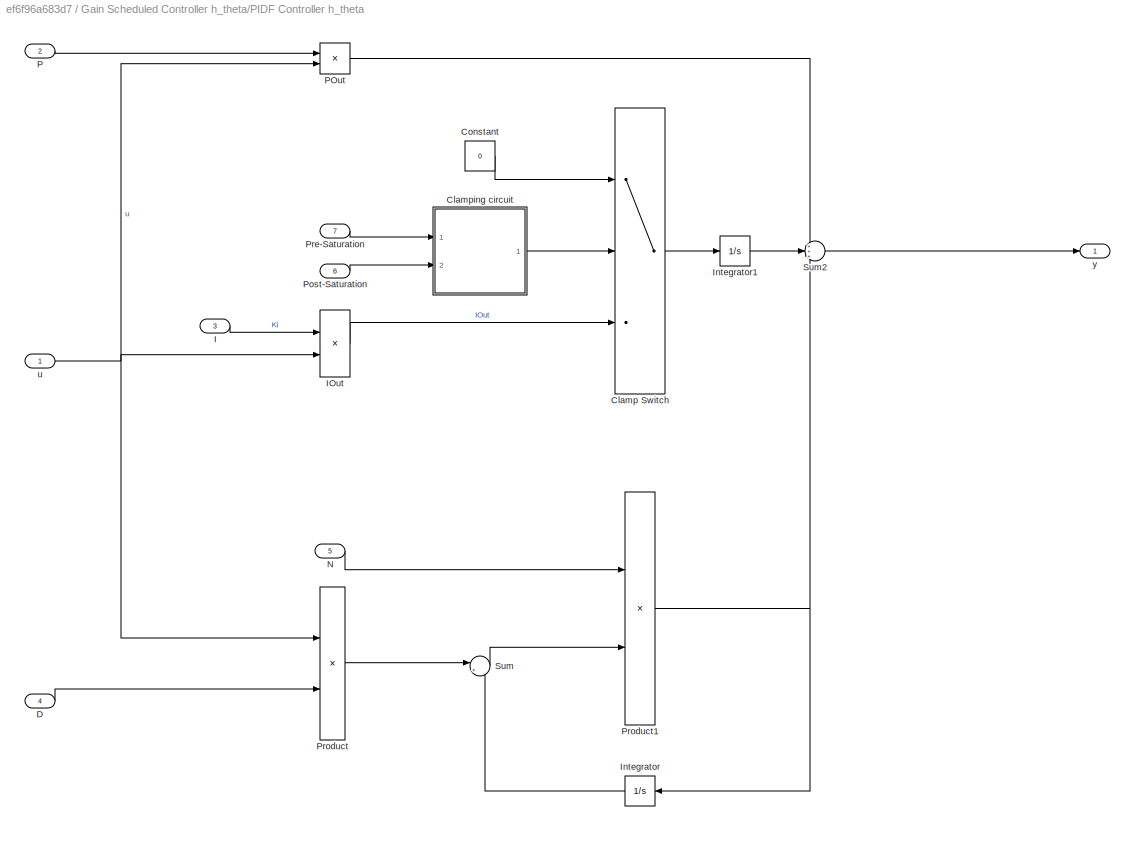
BLOCK [SubSystem] Gain Scheduled Controller h_theta/PIDF Controller h_theta
  Ports = [7, 1]
  RequestExecContextInheritance = off
BLOCK [Lookup_n-D] Gain Scheduled Controller h_theta/PIDF Controller h_theta Kd 2D Lookup Table
  BreakpointsForDimension1 = SkywalkerX8.Control.Longitudinal.SchedulingVariables.VaArray
  BreakpointsForDimension2 = SkywalkerX8.Control.Longitudinal.SchedulingVariables.alphaArray
  InternalRulePriority = Speed
  Ports = [2, 1]
  RndMeth = Simplest
  Table = SkywalkerX8.Control.Longitudinal.altController.KdAlt
BLOCK [Lookup_n-D] Gain Scheduled Controller h_theta/PIDF Controller h_theta Ki 2D Lookup Table
  BreakpointsForDimension1 = SkywalkerX8.Control.Longitudinal.SchedulingVariables.VaArray
  BreakpointsForDimension2 = SkywalkerX8.Control.Longitudinal.SchedulingVariables.alphaArray
  InternalRulePriority = Speed
  Ports = [2, 1]
  RndMeth = Simplest
  Table = SkywalkerX8.Control.Longitudinal.altController.KiAlt
BLOCK [Lookup_n-D] Gain Scheduled Controller h_theta/PIDF Controller h_theta Kp 2D Lookup Table
  BreakpointsForDimension1 = SkywalkerX8.Control.Longitudinal.SchedulingVariables.VaArray
  BreakpointsForDimension2 = SkywalkerX8.Control.Longitudinal.SchedulingVariables.alphaArray
  InternalRulePriority = Speed
  Ports = [2, 1]
  RndMeth = Simplest
  Table = SkywalkerX8.Control.Longitudinal.altController.KpAlt
BLOCK [Lookup_n-D] Gain Scheduled Controller h_theta/PIDF Controller h_theta N 2D Lookup Table
  BreakpointsForDimension1 = SkywalkerX8.Control.Longitudinal.SchedulingVariables.VaArray
  BreakpointsForDimension2 = SkywalkerX8.Control.Longitudinal.SchedulingVariables.alphaArray
  InternalRulePriority = Speed
  Ports = [2, 1]
  RndMeth = Simplest
  Table = SkywalkerX8.Control.Longitudinal.altController.NAlt
BLOCK [Switch] Gain Scheduled Controller h_theta/PIDF Controller h_theta/Clamp Switch
  Criteria = u2 ~= 0
  InputSameDT = off
  SaturateOnIntegerOverflow = off
BLOCK [SubSystem] Gain Scheduled Controller h_theta/PIDF Controller h_theta/Clamping circuit
  Ports = [2, 1]
  RequestExecContextInheritance = off
BLOCK [Outport] Gain Scheduled Controller h_theta/PIDF Controller h_theta/Clamping circuit/Clamp
  DisableCoverage = on
  IconDisplay = Port number
BLOCK [Memory] Gain Scheduled Controller h_theta/PIDF Controller h_theta/Clamping circuit/Memory
  DisableCoverage = on
BLOCK [RelationalOperator] Gain Scheduled Controller h_theta/PIDF Controller h_theta/Clamping circuit/NotEqual
  DisableCoverage = on
  Operator = ~=
  Ports = [2, 1]
BLOCK [Inport] Gain Scheduled Controller h_theta/PIDF Controller h_theta/Clamping circuit/postSat
  DisableCoverage = on
  IconDisplay = Port number
  Port = 2
BLOCK [Inport] Gain Scheduled Controller h_theta/PIDF Controller h_theta/Clamping circuit/preSat
  DisableCoverage = on
  IconDisplay = Port number
BLOCK [Constant] Gain Scheduled Controller h_theta/PIDF Controller h_theta/Constant
  Value = 0
BLOCK [Inport] Gain Scheduled Controller h_theta/PIDF Controller h_theta/D
  IconDisplay = Port number
  Port = 4
BLOCK [Inport] Gain Scheduled Controller h_theta/PIDF Controller h_theta/I
  IconDisplay = Port number
  Port = 3
BLOCK [Product] Gain Scheduled Controller h_theta/PIDF Controller h_theta/IOut
  DisableCoverage = on
  InputSameDT = off
  OutDataTypeStr = Inherit: Inherit via internal rule
  Ports = [2, 1]
  RndMeth = Floor
  SaturateOnIntegerOverflow = off
BLOCK [Integrator] Gain Scheduled Controller h_theta/PIDF Controller h_theta/Integrator
  Ports = [1, 1]
BLOCK [Integrator] Gain Scheduled Controller h_theta/PIDF Controller h_theta/Integrator1
  IgnoreLimit = on
  InitialCondition = SkywalkerX8.InitialConditions.altController.Integrator
  Ports = [1, 1]
BLOCK [Inport] Gain Scheduled Controller h_theta/PIDF Controller h_theta/N
  IconDisplay = Port number
  Port = 5
BLOCK [Inport] Gain Scheduled Controller h_theta/PIDF Controller h_theta/P
  IconDisplay = Port number
  Port = 2
BLOCK [Product] Gain Scheduled Controller h_theta/PIDF Controller h_theta/POut
  InputSameDT = off
  OutDataTypeStr = Inherit: Inherit via internal rule
  Ports = [2, 1]
  RndMeth = Floor
  SaturateOnIntegerOverflow = off
BLOCK [Inport] Gain Scheduled Controller h_theta/PIDF Controller h_theta/Post-Saturation
  IconDisplay = Port number
  Port = 6
BLOCK [Inport] Gain Scheduled Controller h_theta/PIDF Controller h_theta/Pre-Saturation
  IconDisplay = Port number
  Port = 7
BLOCK [Product] Gain Scheduled Controller h_theta/PIDF Controller h_theta/Product
  InputSameDT = off
  OutDataTypeStr = Inherit: Inherit via internal rule
  Ports = [2, 1]
  RndMeth = Floor
  SaturateOnIntegerOverflow = off
BLOCK [Product] Gain Scheduled Controller h_theta/PIDF Controller h_theta/Product1
  InputSameDT = off
  OutDataTypeStr = Inherit: Inherit via internal rule
  Ports = [2, 1]
  RndMeth = Floor
  SaturateOnIntegerOverflow = off
BLOCK [Sum] Gain Scheduled Controller h_theta/PIDF Controller h_theta/Sum
  IconShape = round
  InputSameDT = off
  Inputs = |+-
  OutDataTypeStr = Inherit: Inherit via internal rule
  Ports = [2, 1]
  SaturateOnIntegerOverflow = off
BLOCK [Sum] Gain Scheduled Controller h_theta/PIDF Controller h_theta/Sum2
  IconShape = round
  InputSameDT = off
  Inputs = +++
  OutDataTypeStr = Inherit: Inherit via internal rule
  Ports = [3, 1]
  SaturateOnIntegerOverflow = off
BLOCK [Inport] Gain Scheduled Controller h_theta/PIDF Controller h_theta/u
  IconDisplay = Port number
BLOCK [Outport] Gain Scheduled Controller h_theta/PIDF Controller h_theta/y
  IconDisplay = Port number
  InitialOutput = 0
BLOCK [Saturate] Gain Scheduled Controller h_theta/Saturation
  InputPortMap = u0
  LowerLimit = SkywalkerX8.Control.Longitudinal.altController.lowerSaturationThetaC
  Ports = [1, 1]
  UpperLimit = SkywalkerX8.Control.Longitudinal.altController.upperSaturationThetaC
BLOCK [Inport] Gain Scheduled Controller h_theta/Va
  IconDisplay = Port number
  Port = 2
BLOCK [Inport] Gain Scheduled Controller h_theta/alpha
  IconDisplay = Port number
  Port = 3
BLOCK [Inport] Gain Scheduled Controller h_theta/h_e
  IconDisplay = Port number
BLOCK [Outport] Gain Scheduled Controller h_theta/theta_c_h
  IconDisplay = Port number
BLOCK [Goto] Goto
  GotoTag = alt
BLOCK [Goto] Goto1
  GotoTag = theta
BLOCK [Goto] Goto2
  GotoTag = alpha
BLOCK [Goto] Goto3
  GotoTag = q
BLOCK [Goto] Goto4
  GotoTag = Va
BLOCK [Goto] Goto5
  GotoTag = de
BLOCK [SubSystem] Servo-Motor
  Ports = [1, 1]
  RequestExecContextInheritance = off
BLOCK [RateLimiter] Servo-Motor/Rate Limiter
  Commented = through
  FallingSlewLimit = -SkywalkerX8.Actuators.Servos.RateLimit
  InitialCondition = SkywalkerX8.InitialConditions.de
  RisingSlewLimit = SkywalkerX8.Actuators.Servos.RateLimit
  SampleTimeMode = inherited
BLOCK [Saturate] Servo-Motor/Saturation
  Commented = through
  InputPortMap = u0
  LowerLimit = 2*SkywalkerX8.Actuators.Servos.LowerSaturation
  Ports = [1, 1]
  UpperLimit = 2*SkywalkerX8.Actuators.Servos.UpperSaturation
BLOCK [Reference] Servo-Motor/Transfer Fcn (with initial outputs)  REF=simulink_extras/Additional
Linear/Transfer Fcn
(with initial outputs)
  Ports = [1, 1]
  SourceBlock = simulink_extras/Additional\nLinear/Transfer Fcn\n(with initial outputs)
  SourceProductBaseCode = SL
  SourceProductName = Simulink
  SourceType = Transfer Function with Initial Outputs
BLOCK [Outport] Servo-Motor/da
  IconDisplay = Port number
BLOCK [Inport] Servo-Motor/da*
  IconDisplay = Port number
BLOCK [SubSystem] Signal Builder
  ClipboardFcn = sigbuilder_block('clipboard');
  CloseFcn = sigbuilder_block('close');
  ContinueFcn = sigbuilder_block('continue');
  CopyFcn = sigbuilder_block('copy');
  DeleteFcn = sigbuilder_block('delete');
  LoadFcn = sigbuilder_block('load');
  MaskHideContents = on
  ModelCloseFcn = sigbuilder_block('modelClose');
  NameChangeFcn = sigbuilder_block('namechange');
  OpenFcn = sigbuilder_block('open',[437.6 199.2 550.4 400 ]);
  PauseFcn = sigbuilder_block('pause');
  Ports = [0, 1]
  PreSaveFcn = sigbuilder_block('preSave');
  RequestExecContextInheritance = off
  StartFcn = sigbuilder_block('start');
  StopFcn = sigbuilder_block('stop');
  Tag = STV Subsys
BLOCK [Demux] Signal Builder/Demux
  Outputs = 1
  Ports = [1, 1]
  Tag = STV Demux
BLOCK [FromWorkspace] Signal Builder/FromWs
  SampleTime = 0
  Tag = STV FromWs
  VariableName = tuvar
  ZeroCross = on
BLOCK [Outport] Signal Builder/Signal 1
  IconDisplay = Port number
  Tag = STV Outport
BLOCK [ModelReference] SkywalkerX8 Aircraft + Aerodynamics Lateral Verification
  ModelNameDialog = SkywalkerX8_Lateral_Verification.slx
  ModelReferenceVersion = 1.42
  Ports = [3, 8]
BLOCK [Sum] Sum
  IconShape = round
  InputSameDT = off
  Inputs = |+-
  OutDataTypeStr = Inherit: Inherit via internal rule
  Ports = [2, 1]
  SaturateOnIntegerOverflow = off
BLOCK [Sum] Sum1
  IconShape = round
  InputSameDT = off
  Inputs = -+|
  OutDataTypeStr = Inherit: Inherit via internal rule
  Ports = [2, 1]
  SaturateOnIntegerOverflow = off
BLOCK [Sum] Sum2
  IconShape = round
  InputSameDT = off
  Inputs = |+-
  OutDataTypeStr = Inherit: Inherit via internal rule
  Ports = [2, 1]
  SaturateOnIntegerOverflow = off
BLOCK [Sum] Sum3
  IconShape = round
  InputSameDT = off
  Inputs = |+-
  OutDataTypeStr = Inherit: Inherit via internal rule
  Ports = [2, 1]
  SaturateOnIntegerOverflow = off
BLOCK [Sum] Sum4
  IconShape = round
  InputSameDT = off
  Inputs = |+-
  OutDataTypeStr = Inherit: Inherit via internal rule
  Ports = [2, 1]
  SaturateOnIntegerOverflow = off
BLOCK [Constant] Va
  Value = sqrt(SkywalkerX8.InitialConditions.uvw*SkywalkerX8.InitialConditions.uvw')
BLOCK [Constant] h_c
  Value = -SkywalkerX8.InitialConditions.XeYeZe(3)
ANNOTATION Gain Scheduled Controller Phi: Since we already essentially have dphi/dt, we can use it directly and create a PIDF controller with PI acting on theta and the "DF" (filtered derivative) simply being a filtered p
ANNOTATION Gain Scheduled Controller Theta: Since we already essentially have dtheta/dt, we can use it directly and create a PIDF controller with PI acting on theta and the "DF" (filtered derivative) simply being a filtered q
ANNOTATION Gain Scheduled Controller Theta: We know that negative de results in a positive moment, which results in positive q and positive theta - so we know we need to invert our sign. We do this here so that tuning can be constrained to positive gains where possible.
ANNOTATION Gain Scheduled Controller Theta: We know that the aircraft in wings-level trim has an elevator setting. As such, we know that we require an integrator in the theta loop to hold this elevator setting state in trim in order to minimize actuator power requirements.
ANNOTATION Gain Scheduled Controller h_theta: We know that wings-level trim has the aircraft with a pitch angle. As such, we know that at a minimum this controller has to be a PI controller, because otherwise we have no state to hold the required steady state theta command.
ANNOTATION Gain Scheduled Controller h_theta: While this is true - it tunes to 0 anyway so we just remove it and accept some drift at the start of a simulation if we start from a non-0 position
LINE From1:1 -> Gain Scheduled Controller Theta:4
LINE From2:1 -> Gain Scheduled Controller Theta:3
LINE From3:1 -> Sum4:2
LINE From4:1 -> Gain Scheduled Controller h_theta:2
LINE From5:1 -> Gain Scheduled Controller h_theta:3
LINE From6:1 -> Sum3:2
LINE From7:1 -> SkywalkerX8 Aircraft + Aerodynamics Lateral Verification:2
LINE From:1 -> Gain Scheduled Controller Theta:5
LINE Gain Scheduled Controller Chi/Chi_e:1 -> Gain Scheduled Controller Chi/PIDF Controller Va_theta:1
LINE Gain Scheduled Controller Chi/PIDF Controller Chi Ki 2D Lookup Table:1 -> Gain Scheduled Controller Chi/PIDF Controller Va_theta:3
LINE Gain Scheduled Controller Chi/PIDF Controller Chi Kp 2D Lookup Table:1 -> Gain Scheduled Controller Chi/PIDF Controller Va_theta:2
LINE Gain Scheduled Controller Chi/PIDF Controller Va_theta/Clamp Switch:1 -> Gain Scheduled Controller Chi/PIDF Controller Va_theta/Integrator1:1
LINE Gain Scheduled Controller Chi/PIDF Controller Va_theta/Clamping circuit/Memory:1 -> Gain Scheduled Controller Chi/PIDF Controller Va_theta/Clamping circuit/Clamp:1
LINE Gain Scheduled Controller Chi/PIDF Controller Va_theta/Clamping circuit/NotEqual:1 -> Gain Scheduled Controller Chi/PIDF Controller Va_theta/Clamping circuit/Memory:1
LINE Gain Scheduled Controller Chi/PIDF Controller Va_theta/Clamping circuit/postSat:1 -> Gain Scheduled Controller Chi/PIDF Controller Va_theta/Clamping circuit/NotEqual:2
LINE Gain Scheduled Controller Chi/PIDF Controller Va_theta/Clamping circuit/preSat:1 -> Gain Scheduled Controller Chi/PIDF Controller Va_theta/Clamping circuit/NotEqual:1
LINE Gain Scheduled Controller Chi/PIDF Controller Va_theta/Clamping circuit:1 -> Gain Scheduled Controller Chi/PIDF Controller Va_theta/Clamp Switch:2
LINE Gain Scheduled Controller Chi/PIDF Controller Va_theta/Constant:1 -> Gain Scheduled Controller Chi/PIDF Controller Va_theta/Clamp Switch:1
LINE Gain Scheduled Controller Chi/PIDF Controller Va_theta/I:1 -> Gain Scheduled Controller Chi/PIDF Controller Va_theta/IOut:1
LINE Gain Scheduled Controller Chi/PIDF Controller Va_theta/IOut:1 -> Gain Scheduled Controller Chi/PIDF Controller Va_theta/Clamp Switch:3
LINE Gain Scheduled Controller Chi/PIDF Controller Va_theta/Integrator1:1 -> Gain Scheduled Controller Chi/PIDF Controller Va_theta/Sum2:2
LINE Gain Scheduled Controller Chi/PIDF Controller Va_theta/P:1 -> Gain Scheduled Controller Chi/PIDF Controller Va_theta/POut:1
LINE Gain Scheduled Controller Chi/PIDF Controller Va_theta/POut:1 -> Gain Scheduled Controller Chi/PIDF Controller Va_theta/Sum2:1
LINE Gain Scheduled Controller Chi/PIDF Controller Va_theta/Post-Saturation:1 -> Gain Scheduled Controller Chi/PIDF Controller Va_theta/Clamping circuit:2
LINE Gain Scheduled Controller Chi/PIDF Controller Va_theta/Pre-Saturation:1 -> Gain Scheduled Controller Chi/PIDF Controller Va_theta/Clamping circuit:1
LINE Gain Scheduled Controller Chi/PIDF Controller Va_theta/Sum2:1 -> Gain Scheduled Controller Chi/PIDF Controller Va_theta/y:1
NET Gain Scheduled Controller Chi/PIDF Controller Va_theta/u:1 -> Gain Scheduled Controller Chi/PIDF Controller Va_theta/IOut:2, Gain Scheduled Controller Chi/PIDF Controller Va_theta/POut:2
NET Gain Scheduled Controller Chi/PIDF Controller Va_theta:1 -> Gain Scheduled Controller Chi/PIDF Controller Va_theta:5, Gain Scheduled Controller Chi/Saturation:1
NET Gain Scheduled Controller Chi/Saturation:1 -> Gain Scheduled Controller Chi/PIDF Controller Va_theta:4, Gain Scheduled Controller Chi/Phi_c:1
NET Gain Scheduled Controller Chi/Va:1 -> Gain Scheduled Controller Chi/PIDF Controller Chi Ki 2D Lookup Table:1, Gain Scheduled Controller Chi/PIDF Controller Chi Kp 2D Lookup Table:1
LINE Gain Scheduled Controller Chi:1 -> Sum:1
LINE Gain Scheduled Controller Phi/DF Controller Phi/D:1 -> Gain Scheduled Controller Phi/DF Controller Phi/Product:1
NET Gain Scheduled Controller Phi/DF Controller Phi/Integrator:1 -> Gain Scheduled Controller Phi/DF Controller Phi/Sum:2, Gain Scheduled Controller Phi/DF Controller Phi/da*:1
LINE Gain Scheduled Controller Phi/DF Controller Phi/N:1 -> Gain Scheduled Controller Phi/DF Controller Phi/Product1:1
LINE Gain Scheduled Controller Phi/DF Controller Phi/Product1:1 -> Gain Scheduled Controller Phi/DF Controller Phi/Integrator:1
LINE Gain Scheduled Controller Phi/DF Controller Phi/Product:1 -> Gain Scheduled Controller Phi/DF Controller Phi/Sum:1
LINE Gain Scheduled Controller Phi/DF Controller Phi/Sum:1 -> Gain Scheduled Controller Phi/DF Controller Phi/Product1:2
LINE Gain Scheduled Controller Phi/DF Controller Phi/du//dt:1 -> Gain Scheduled Controller Phi/DF Controller Phi/Product:2
LINE Gain Scheduled Controller Phi/DF Controller Phi:1 -> Gain Scheduled Controller Phi/Sum1:3
LINE Gain Scheduled Controller Phi/PDF Controller Phi 2DOF Kd 2D Lookup Table:1 -> Gain Scheduled Controller Phi/PDF Controller Phi 2DOF:3
LINE Gain Scheduled Controller Phi/PDF Controller Phi 2DOF Kp 2D Lookup Table:1 -> Gain Scheduled Controller Phi/PDF Controller Phi 2DOF:2
LINE Gain Scheduled Controller Phi/PDF Controller Phi 2DOF N 2D Lookup Table:1 -> Gain Scheduled Controller Phi/PDF Controller Phi 2DOF:4
LINE Gain Scheduled Controller Phi/PDF Controller Phi 2DOF/D:1 -> Gain Scheduled Controller Phi/PDF Controller Phi 2DOF/Product:2
LINE Gain Scheduled Controller Phi/PDF Controller Phi 2DOF/Integrator:1 -> Gain Scheduled Controller Phi/PDF Controller Phi 2DOF/Sum:2
LINE Gain Scheduled Controller Phi/PDF Controller Phi 2DOF/N:1 -> Gain Scheduled Controller Phi/PDF Controller Phi 2DOF/Product1:1
LINE Gain Scheduled Controller Phi/PDF Controller Phi 2DOF/P:1 -> Gain Scheduled Controller Phi/PDF Controller Phi 2DOF/POut:1
LINE Gain Scheduled Controller Phi/PDF Controller Phi 2DOF/POut:1 -> Gain Scheduled Controller Phi/PDF Controller Phi 2DOF/Sum2:1
NET Gain Scheduled Controller Phi/PDF Controller Phi 2DOF/Product1:1 -> Gain Scheduled Controller Phi/PDF Controller Phi 2DOF/Integrator:1, Gain Scheduled Controller Phi/PDF Controller Phi 2DOF/Sum2:2
LINE Gain Scheduled Controller Phi/PDF Controller Phi 2DOF/Product:1 -> Gain Scheduled Controller Phi/PDF Controller Phi 2DOF/Sum:1
LINE Gain Scheduled Controller Phi/PDF Controller Phi 2DOF/Sum2:1 -> Gain Scheduled Controller Phi/PDF Controller Phi 2DOF/y:1
LINE Gain Scheduled Controller Phi/PDF Controller Phi 2DOF/Sum:1 -> Gain Scheduled Controller Phi/PDF Controller Phi 2DOF/Product1:2
NET Gain Scheduled Controller Phi/PDF Controller Phi 2DOF/u:1 -> Gain Scheduled Controller Phi/PDF Controller Phi 2DOF/POut:2, Gain Scheduled Controller Phi/PDF Controller Phi 2DOF/Product:1
LINE Gain Scheduled Controller Phi/PDF Controller Phi 2DOF:1 -> Gain Scheduled Controller Phi/Sum1:1
LINE Gain Scheduled Controller Phi/PI Controller Phi/Clamp Switch:1 -> Gain Scheduled Controller Phi/PI Controller Phi/Integrator1:1
LINE Gain Scheduled Controller Phi/PI Controller Phi/Clamping circuit/Memory:1 -> Gain Scheduled Controller Phi/PI Controller Phi/Clamping circuit/Clamp:1
LINE Gain Scheduled Controller Phi/PI Controller Phi/Clamping circuit/NotEqual:1 -> Gain Scheduled Controller Phi/PI Controller Phi/Clamping circuit/Memory:1
LINE Gain Scheduled Controller Phi/PI Controller Phi/Clamping circuit/postSat:1 -> Gain Scheduled Controller Phi/PI Controller Phi/Clamping circuit/NotEqual:2
LINE Gain Scheduled Controller Phi/PI Controller Phi/Clamping circuit/preSat:1 -> Gain Scheduled Controller Phi/PI Controller Phi/Clamping circuit/NotEqual:1
LINE Gain Scheduled Controller Phi/PI Controller Phi/Clamping circuit:1 -> Gain Scheduled Controller Phi/PI Controller Phi/Clamp Switch:2
LINE Gain Scheduled Controller Phi/PI Controller Phi/Constant:1 -> Gain Scheduled Controller Phi/PI Controller Phi/Clamp Switch:1
LINE Gain Scheduled Controller Phi/PI Controller Phi/I:1 -> Gain Scheduled Controller Phi/PI Controller Phi/IOut:1
LINE Gain Scheduled Controller Phi/PI Controller Phi/IOut:1 -> Gain Scheduled Controller Phi/PI Controller Phi/Clamp Switch:3
LINE Gain Scheduled Controller Phi/PI Controller Phi/Integrator1:1 -> Gain Scheduled Controller Phi/PI Controller Phi/Sum2:1
LINE Gain Scheduled Controller Phi/PI Controller Phi/P:1 -> Gain Scheduled Controller Phi/PI Controller Phi/POut:2
LINE Gain Scheduled Controller Phi/PI Controller Phi/POut:1 -> Gain Scheduled Controller Phi/PI Controller Phi/Sum2:2
LINE Gain Scheduled Controller Phi/PI Controller Phi/Post-Saturation:1 -> Gain Scheduled Controller Phi/PI Controller Phi/Clamping circuit:2
LINE Gain Scheduled Controller Phi/PI Controller Phi/Pre-Saturation:1 -> Gain Scheduled Controller Phi/PI Controller Phi/Clamping circuit:1
LINE Gain Scheduled Controller Phi/PI Controller Phi/Sum2:1 -> Gain Scheduled Controller Phi/PI Controller Phi/y:1
NET Gain Scheduled Controller Phi/PI Controller Phi/u:1 -> Gain Scheduled Controller Phi/PI Controller Phi/IOut:2, Gain Scheduled Controller Phi/PI Controller Phi/POut:1
LINE Gain Scheduled Controller Phi/PI Controller Phi:1 -> Gain Scheduled Controller Phi/Sum1:2
LINE Gain Scheduled Controller Phi/PIDF Controller Phi Kd 2D Lookup Table:1 -> Gain Scheduled Controller Phi/DF Controller Phi:2
LINE Gain Scheduled Controller Phi/PIDF Controller Phi Ki 2D Lookup Table:1 -> Gain Scheduled Controller Phi/PI Controller Phi:3
LINE Gain Scheduled Controller Phi/PIDF Controller Phi Kp 2D Lookup Table:1 -> Gain Scheduled Controller Phi/PI Controller Phi:2
LINE Gain Scheduled Controller Phi/PIDF Controller Phi N 2D Lookup Table:1 -> Gain Scheduled Controller Phi/DF Controller Phi:1
LINE Gain Scheduled Controller Phi/Phi:1 -> Gain Scheduled Controller Phi/PDF Controller Phi 2DOF:1
LINE Gain Scheduled Controller Phi/Phi_e:1 -> Gain Scheduled Controller Phi/PI Controller Phi:1
NET Gain Scheduled Controller Phi/Saturation:1 -> Gain Scheduled Controller Phi/PI Controller Phi:4, Gain Scheduled Controller Phi/da:1
NET Gain Scheduled Controller Phi/Sum1:1 -> Gain Scheduled Controller Phi/PI Controller Phi:5, Gain Scheduled Controller Phi/Saturation:1
NET Gain Scheduled Controller Phi/Va:1 -> Gain Scheduled Controller Phi/PDF Controller Phi 2DOF Kd 2D Lookup Table:1, Gain Scheduled Controller Phi/PDF Controller Phi 2DOF Kp 2D Lookup Table:1, Gain Scheduled Controller Phi/PDF Controller Phi 2DOF N 2D Lookup Table:1, Gain Scheduled Controller Phi/PIDF Controller Phi Kd 2D Lookup Table:1, Gain Scheduled Controller Phi/PIDF Controller Phi Ki 2D Lookup Table:1, Gain Scheduled Controller Phi/PIDF Controller Phi Kp 2D Lookup Table:1, Gain Scheduled Controller Phi/PIDF Controller Phi N 2D Lookup Table:1
LINE Gain Scheduled Controller Phi/p:1 -> Gain Scheduled Controller Phi/DF Controller Phi:3
LINE Gain Scheduled Controller Phi:1 -> Servo-Motor:1
LINE Gain Scheduled Controller Theta/DF Controller Theta/D:1 -> Gain Scheduled Controller Theta/DF Controller Theta/Product:1
NET Gain Scheduled Controller Theta/DF Controller Theta/Integrator:1 -> Gain Scheduled Controller Theta/DF Controller Theta/Sum:2, Gain Scheduled Controller Theta/DF Controller Theta/de*:1
LINE Gain Scheduled Controller Theta/DF Controller Theta/N:1 -> Gain Scheduled Controller Theta/DF Controller Theta/Product1:1
LINE Gain Scheduled Controller Theta/DF Controller Theta/Product1:1 -> Gain Scheduled Controller Theta/DF Controller Theta/Integrator:1
LINE Gain Scheduled Controller Theta/DF Controller Theta/Product:1 -> Gain Scheduled Controller Theta/DF Controller Theta/Sum:1
LINE Gain Scheduled Controller Theta/DF Controller Theta/Sum:1 -> Gain Scheduled Controller Theta/DF Controller Theta/Product1:2
LINE Gain Scheduled Controller Theta/DF Controller Theta/du//dt:1 -> Gain Scheduled Controller Theta/DF Controller Theta/Product:2
LINE Gain Scheduled Controller Theta/DF Controller Theta:1 -> Gain Scheduled Controller Theta/Sum1:3
LINE Gain Scheduled Controller Theta/PDF Controller Theta 2DOF/D:1 -> Gain Scheduled Controller Theta/PDF Controller Theta 2DOF/Product:2
LINE Gain Scheduled Controller Theta/PDF Controller Theta 2DOF/Integrator:1 -> Gain Scheduled Controller Theta/PDF Controller Theta 2DOF/Sum:2
LINE Gain Scheduled Controller Theta/PDF Controller Theta 2DOF/N:1 -> Gain Scheduled Controller Theta/PDF Controller Theta 2DOF/Product1:1
LINE Gain Scheduled Controller Theta/PDF Controller Theta 2DOF/P:1 -> Gain Scheduled Controller Theta/PDF Controller Theta 2DOF/POut:1
LINE Gain Scheduled Controller Theta/PDF Controller Theta 2DOF/POut:1 -> Gain Scheduled Controller Theta/PDF Controller Theta 2DOF/Sum2:1
NET Gain Scheduled Controller Theta/PDF Controller Theta 2DOF/Product1:1 -> Gain Scheduled Controller Theta/PDF Controller Theta 2DOF/Integrator:1, Gain Scheduled Controller Theta/PDF Controller Theta 2DOF/Sum2:2
LINE Gain Scheduled Controller Theta/PDF Controller Theta 2DOF/Product:1 -> Gain Scheduled Controller Theta/PDF Controller Theta 2DOF/Sum:1
LINE Gain Scheduled Controller Theta/PDF Controller Theta 2DOF/Sum2:1 -> Gain Scheduled Controller Theta/PDF Controller Theta 2DOF/y:1
LINE Gain Scheduled Controller Theta/PDF Controller Theta 2DOF/Sum:1 -> Gain Scheduled Controller Theta/PDF Controller Theta 2DOF/Product1:2
NET Gain Scheduled Controller Theta/PDF Controller Theta 2DOF/u:1 -> Gain Scheduled Controller Theta/PDF Controller Theta 2DOF/POut:2, Gain Scheduled Controller Theta/PDF Controller Theta 2DOF/Product:1
LINE Gain Scheduled Controller Theta/PDF Controller Theta 2DOF:1 -> Gain Scheduled Controller Theta/Sum1:1
LINE Gain Scheduled Controller Theta/PDF Controller theta 2DOF Kd 2D Lookup Table:1 -> Gain Scheduled Controller Theta/PDF Controller Theta 2DOF:3
LINE Gain Scheduled Controller Theta/PDF Controller theta 2DOF Kp 2D Lookup Table:1 -> Gain Scheduled Controller Theta/PDF Controller Theta 2DOF:2
LINE Gain Scheduled Controller Theta/PDF Controller theta 2DOF N 2D Lookup Table:1 -> Gain Scheduled Controller Theta/PDF Controller Theta 2DOF:4
LINE Gain Scheduled Controller Theta/PI Controller Theta/Clamp Switch:1 -> Gain Scheduled Controller Theta/PI Controller Theta/Integrator1:1
LINE Gain Scheduled Controller Theta/PI Controller Theta/Clamping circuit/Memory:1 -> Gain Scheduled Controller Theta/PI Controller Theta/Clamping circuit/Clamp:1
LINE Gain Scheduled Controller Theta/PI Controller Theta/Clamping circuit/NotEqual:1 -> Gain Scheduled Controller Theta/PI Controller Theta/Clamping circuit/Memory:1
LINE Gain Scheduled Controller Theta/PI Controller Theta/Clamping circuit/postSat:1 -> Gain Scheduled Controller Theta/PI Controller Theta/Clamping circuit/NotEqual:2
LINE Gain Scheduled Controller Theta/PI Controller Theta/Clamping circuit/preSat:1 -> Gain Scheduled Controller Theta/PI Controller Theta/Clamping circuit/NotEqual:1
LINE Gain Scheduled Controller Theta/PI Controller Theta/Clamping circuit:1 -> Gain Scheduled Controller Theta/PI Controller Theta/Clamp Switch:2
LINE Gain Scheduled Controller Theta/PI Controller Theta/Constant:1 -> Gain Scheduled Controller Theta/PI Controller Theta/Clamp Switch:1
LINE Gain Scheduled Controller Theta/PI Controller Theta/I:1 -> Gain Scheduled Controller Theta/PI Controller Theta/IOut:1
LINE Gain Scheduled Controller Theta/PI Controller Theta/IOut:1 -> Gain Scheduled Controller Theta/PI Controller Theta/Clamp Switch:3
LINE Gain Scheduled Controller Theta/PI Controller Theta/Integrator1:1 -> Gain Scheduled Controller Theta/PI Controller Theta/Sum2:1
LINE Gain Scheduled Controller Theta/PI Controller Theta/P:1 -> Gain Scheduled Controller Theta/PI Controller Theta/POut:2
LINE Gain Scheduled Controller Theta/PI Controller Theta/POut:1 -> Gain Scheduled Controller Theta/PI Controller Theta/Sum2:2
LINE Gain Scheduled Controller Theta/PI Controller Theta/Post-Saturation:1 -> Gain Scheduled Controller Theta/PI Controller Theta/Clamping circuit:2
LINE Gain Scheduled Controller Theta/PI Controller Theta/Pre-Saturation:1 -> Gain Scheduled Controller Theta/PI Controller Theta/Clamping circuit:1
LINE Gain Scheduled Controller Theta/PI Controller Theta/Sum2:1 -> Gain Scheduled Controller Theta/PI Controller Theta/y:1
NET Gain Scheduled Controller Theta/PI Controller Theta/u:1 -> Gain Scheduled Controller Theta/PI Controller Theta/IOut:2, Gain Scheduled Controller Theta/PI Controller Theta/POut:1
LINE Gain Scheduled Controller Theta/PI Controller Theta:1 -> Gain Scheduled Controller Theta/Sum1:2
LINE Gain Scheduled Controller Theta/PIDF Controller theta Kd 2D Lookup Table:1 -> Gain Scheduled Controller Theta/DF Controller Theta:2
LINE Gain Scheduled Controller Theta/PIDF Controller theta Ki 2D Lookup Table:1 -> Gain Scheduled Controller Theta/PI Controller Theta:3
LINE Gain Scheduled Controller Theta/PIDF Controller theta Kp 2D Lookup Table:1 -> Gain Scheduled Controller Theta/PI Controller Theta:2
LINE Gain Scheduled Controller Theta/PIDF Controller theta N 2D Lookup Table:1 -> Gain Scheduled Controller Theta/DF Controller Theta:1
LINE Gain Scheduled Controller Theta/Ref:1 -> Gain Scheduled Controller Theta/PDF Controller Theta 2DOF:1
NET Gain Scheduled Controller Theta/Saturation:1 -> Gain Scheduled Controller Theta/PI Controller Theta:4, Gain Scheduled Controller Theta/Sign Inversion:1
LINE Gain Scheduled Controller Theta/Sign Inversion:1 -> Gain Scheduled Controller Theta/de:1
NET Gain Scheduled Controller Theta/Sum1:1 -> Gain Scheduled Controller Theta/PI Controller Theta:5, Gain Scheduled Controller Theta/Saturation:1
NET Gain Scheduled Controller Theta/Va:1 -> Gain Scheduled Controller Theta/PDF Controller theta 2DOF Kd 2D Lookup Table:1, Gain Scheduled Controller Theta/PDF Controller theta 2DOF Kp 2D Lookup Table:1, Gain Scheduled Controller Theta/PDF Controller theta 2DOF N 2D Lookup Table:1, Gain Scheduled Controller Theta/PIDF Controller theta Kd 2D Lookup Table:1, Gain Scheduled Controller Theta/PIDF Controller theta Ki 2D Lookup Table:1, Gain Scheduled Controller Theta/PIDF Controller theta Kp 2D Lookup Table:1, Gain Scheduled Controller Theta/PIDF Controller theta N 2D Lookup Table:1
NET Gain Scheduled Controller Theta/alpha:1 -> Gain Scheduled Controller Theta/PDF Controller theta 2DOF Kd 2D Lookup Table:2, Gain Scheduled Controller Theta/PDF Controller theta 2DOF Kp 2D Lookup Table:2, Gain Scheduled Controller Theta/PDF Controller theta 2DOF N 2D Lookup Table:2, Gain Scheduled Controller Theta/PIDF Controller theta Kd 2D Lookup Table:2, Gain Scheduled Controller Theta/PIDF Controller theta Ki 2D Lookup Table:2, Gain Scheduled Controller Theta/PIDF Controller theta Kp 2D Lookup Table:2, Gain Scheduled Controller Theta/PIDF Controller theta N 2D Lookup Table:2
LINE Gain Scheduled Controller Theta/q:1 -> Gain Scheduled Controller Theta/DF Controller Theta:3
LINE Gain Scheduled Controller Theta/theta_e:1 -> Gain Scheduled Controller Theta/PI Controller Theta:1
LINE Gain Scheduled Controller Theta:1 -> Goto5:1
LINE Gain Scheduled Controller Va_dt/PIDF Controller Va_dt Kd 2D Lookup Table:1 -> Gain Scheduled Controller Va_dt/PIDF Controller Va_dt:4
LINE Gain Scheduled Controller Va_dt/PIDF Controller Va_dt Ki 2D Lookup Table:1 -> Gain Scheduled Controller Va_dt/PIDF Controller Va_dt:3
LINE Gain Scheduled Controller Va_dt/PIDF Controller Va_dt Kp 2D Lookup Table:1 -> Gain Scheduled Controller Va_dt/PIDF Controller Va_dt:2
LINE Gain Scheduled Controller Va_dt/PIDF Controller Va_dt N 2D Lookup Table:1 -> Gain Scheduled Controller Va_dt/PIDF Controller Va_dt:5
LINE Gain Scheduled Controller Va_dt/PIDF Controller Va_dt/Clamp Switch:1 -> Gain Scheduled Controller Va_dt/PIDF Controller Va_dt/Integrator1:1
LINE Gain Scheduled Controller Va_dt/PIDF Controller Va_dt/Clamping circuit/Memory:1 -> Gain Scheduled Controller Va_dt/PIDF Controller Va_dt/Clamping circuit/Clamp:1
LINE Gain Scheduled Controller Va_dt/PIDF Controller Va_dt/Clamping circuit/NotEqual:1 -> Gain Scheduled Controller Va_dt/PIDF Controller Va_dt/Clamping circuit/Memory:1
LINE Gain Scheduled Controller Va_dt/PIDF Controller Va_dt/Clamping circuit/postSat:1 -> Gain Scheduled Controller Va_dt/PIDF Controller Va_dt/Clamping circuit/NotEqual:2
LINE Gain Scheduled Controller Va_dt/PIDF Controller Va_dt/Clamping circuit/preSat:1 -> Gain Scheduled Controller Va_dt/PIDF Controller Va_dt/Clamping circuit/NotEqual:1
LINE Gain Scheduled Controller Va_dt/PIDF Controller Va_dt/Clamping circuit:1 -> Gain Scheduled Controller Va_dt/PIDF Controller Va_dt/Clamp Switch:2
LINE Gain Scheduled Controller Va_dt/PIDF Controller Va_dt/Constant:1 -> Gain Scheduled Controller Va_dt/PIDF Controller Va_dt/Clamp Switch:1
LINE Gain Scheduled Controller Va_dt/PIDF Controller Va_dt/D:1 -> Gain Scheduled Controller Va_dt/PIDF Controller Va_dt/Product:2
LINE Gain Scheduled Controller Va_dt/PIDF Controller Va_dt/I:1 -> Gain Scheduled Controller Va_dt/PIDF Controller Va_dt/IOut:1
LINE Gain Scheduled Controller Va_dt/PIDF Controller Va_dt/IOut:1 -> Gain Scheduled Controller Va_dt/PIDF Controller Va_dt/Clamp Switch:3
LINE Gain Scheduled Controller Va_dt/PIDF Controller Va_dt/Integrator1:1 -> Gain Scheduled Controller Va_dt/PIDF Controller Va_dt/Sum2:2
LINE Gain Scheduled Controller Va_dt/PIDF Controller Va_dt/Integrator:1 -> Gain Scheduled Controller Va_dt/PIDF Controller Va_dt/Sum:2
LINE Gain Scheduled Controller Va_dt/PIDF Controller Va_dt/N:1 -> Gain Scheduled Controller Va_dt/PIDF Controller Va_dt/Product1:1
LINE Gain Scheduled Controller Va_dt/PIDF Controller Va_dt/P:1 -> Gain Scheduled Controller Va_dt/PIDF Controller Va_dt/POut:1
LINE Gain Scheduled Controller Va_dt/PIDF Controller Va_dt/POut:1 -> Gain Scheduled Controller Va_dt/PIDF Controller Va_dt/Sum2:1
NET Gain Scheduled Controller Va_dt/PIDF Controller Va_dt/Product1:1 -> Gain Scheduled Controller Va_dt/PIDF Controller Va_dt/Integrator:1, Gain Scheduled Controller Va_dt/PIDF Controller Va_dt/Sum2:3
LINE Gain Scheduled Controller Va_dt/PIDF Controller Va_dt/Product:1 -> Gain Scheduled Controller Va_dt/PIDF Controller Va_dt/Sum:1
NET Gain Scheduled Controller Va_dt/PIDF Controller Va_dt/Saturation:1 -> Gain Scheduled Controller Va_dt/PIDF Controller Va_dt/Clamping circuit:2, Gain Scheduled Controller Va_dt/PIDF Controller Va_dt/y:1
NET Gain Scheduled Controller Va_dt/PIDF Controller Va_dt/Sum2:1 -> Gain Scheduled Controller Va_dt/PIDF Controller Va_dt/Clamping circuit:1, Gain Scheduled Controller Va_dt/PIDF Controller Va_dt/Saturation:1
LINE Gain Scheduled Controller Va_dt/PIDF Controller Va_dt/Sum:1 -> Gain Scheduled Controller Va_dt/PIDF Controller Va_dt/Product1:2
NET Gain Scheduled Controller Va_dt/PIDF Controller Va_dt/u:1 -> Gain Scheduled Controller Va_dt/PIDF Controller Va_dt/IOut:2, Gain Scheduled Controller Va_dt/PIDF Controller Va_dt/POut:2, Gain Scheduled Controller Va_dt/PIDF Controller Va_dt/Product:1
LINE Gain Scheduled Controller Va_dt/PIDF Controller Va_dt:1 -> Gain Scheduled Controller Va_dt/dt:1
NET Gain Scheduled Controller Va_dt/Va:1 -> Gain Scheduled Controller Va_dt/PIDF Controller Va_dt Kd 2D Lookup Table:1, Gain Scheduled Controller Va_dt/PIDF Controller Va_dt Ki 2D Lookup Table:1, Gain Scheduled Controller Va_dt/PIDF Controller Va_dt Kp 2D Lookup Table:1, Gain Scheduled Controller Va_dt/PIDF Controller Va_dt N 2D Lookup Table:1
LINE Gain Scheduled Controller Va_dt/Va_e:1 -> Gain Scheduled Controller Va_dt/PIDF Controller Va_dt:1
LINE Gain Scheduled Controller Va_dt:1 -> SkywalkerX8 Aircraft + Aerodynamics Lateral Verification:1
LINE Gain Scheduled Controller h_theta/PIDF Controller h_theta Kd 2D Lookup Table:1 -> Gain Scheduled Controller h_theta/PIDF Controller h_theta:4
LINE Gain Scheduled Controller h_theta/PIDF Controller h_theta Ki 2D Lookup Table:1 -> Gain Scheduled Controller h_theta/PIDF Controller h_theta:3
LINE Gain Scheduled Controller h_theta/PIDF Controller h_theta Kp 2D Lookup Table:1 -> Gain Scheduled Controller h_theta/PIDF Controller h_theta:2
LINE Gain Scheduled Controller h_theta/PIDF Controller h_theta N 2D Lookup Table:1 -> Gain Scheduled Controller h_theta/PIDF Controller h_theta:5
LINE Gain Scheduled Controller h_theta/PIDF Controller h_theta/Clamp Switch:1 -> Gain Scheduled Controller h_theta/PIDF Controller h_theta/Integrator1:1
LINE Gain Scheduled Controller h_theta/PIDF Controller h_theta/Clamping circuit/Memory:1 -> Gain Scheduled Controller h_theta/PIDF Controller h_theta/Clamping circuit/Clamp:1
LINE Gain Scheduled Controller h_theta/PIDF Controller h_theta/Clamping circuit/NotEqual:1 -> Gain Scheduled Controller h_theta/PIDF Controller h_theta/Clamping circuit/Memory:1
LINE Gain Scheduled Controller h_theta/PIDF Controller h_theta/Clamping circuit/postSat:1 -> Gain Scheduled Controller h_theta/PIDF Controller h_theta/Clamping circuit/NotEqual:2
LINE Gain Scheduled Controller h_theta/PIDF Controller h_theta/Clamping circuit/preSat:1 -> Gain Scheduled Controller h_theta/PIDF Controller h_theta/Clamping circuit/NotEqual:1
LINE Gain Scheduled Controller h_theta/PIDF Controller h_theta/Clamping circuit:1 -> Gain Scheduled Controller h_theta/PIDF Controller h_theta/Clamp Switch:2
LINE Gain Scheduled Controller h_theta/PIDF Controller h_theta/Constant:1 -> Gain Scheduled Controller h_theta/PIDF Controller h_theta/Clamp Switch:1
LINE Gain Scheduled Controller h_theta/PIDF Controller h_theta/D:1 -> Gain Scheduled Controller h_theta/PIDF Controller h_theta/Product:2
LINE Gain Scheduled Controller h_theta/PIDF Controller h_theta/I:1 -> Gain Scheduled Controller h_theta/PIDF Controller h_theta/IOut:1
LINE Gain Scheduled Controller h_theta/PIDF Controller h_theta/IOut:1 -> Gain Scheduled Controller h_theta/PIDF Controller h_theta/Clamp Switch:3
LINE Gain Scheduled Controller h_theta/PIDF Controller h_theta/Integrator1:1 -> Gain Scheduled Controller h_theta/PIDF Controller h_theta/Sum2:2
LINE Gain Scheduled Controller h_theta/PIDF Controller h_theta/Integrator:1 -> Gain Scheduled Controller h_theta/PIDF Controller h_theta/Sum:2
LINE Gain Scheduled Controller h_theta/PIDF Controller h_theta/N:1 -> Gain Scheduled Controller h_theta/PIDF Controller h_theta/Product1:1
LINE Gain Scheduled Controller h_theta/PIDF Controller h_theta/P:1 -> Gain Scheduled Controller h_theta/PIDF Controller h_theta/POut:1
LINE Gain Scheduled Controller h_theta/PIDF Controller h_theta/POut:1 -> Gain Scheduled Controller h_theta/PIDF Controller h_theta/Sum2:1
LINE Gain Scheduled Controller h_theta/PIDF Controller h_theta/Post-Saturation:1 -> Gain Scheduled Controller h_theta/PIDF Controller h_theta/Clamping circuit:2
LINE Gain Scheduled Controller h_theta/PIDF Controller h_theta/Pre-Saturation:1 -> Gain Scheduled Controller h_theta/PIDF Controller h_theta/Clamping circuit:1
NET Gain Scheduled Controller h_theta/PIDF Controller h_theta/Product1:1 -> Gain Scheduled Controller h_theta/PIDF Controller h_theta/Integrator:1, Gain Scheduled Controller h_theta/PIDF Controller h_theta/Sum2:3
LINE Gain Scheduled Controller h_theta/PIDF Controller h_theta/Product:1 -> Gain Scheduled Controller h_theta/PIDF Controller h_theta/Sum:1
LINE Gain Scheduled Controller h_theta/PIDF Controller h_theta/Sum2:1 -> Gain Scheduled Controller h_theta/PIDF Controller h_theta/y:1
LINE Gain Scheduled Controller h_theta/PIDF Controller h_theta/Sum:1 -> Gain Scheduled Controller h_theta/PIDF Controller h_theta/Product1:2
NET Gain Scheduled Controller h_theta/PIDF Controller h_theta/u:1 -> Gain Scheduled Controller h_theta/PIDF Controller h_theta/IOut:2, Gain Scheduled Controller h_theta/PIDF Controller h_theta/POut:2, Gain Scheduled Controller h_theta/PIDF Controller h_theta/Product:1
NET Gain Scheduled Controller h_theta/PIDF Controller h_theta:1 -> Gain Scheduled Controller h_theta/PIDF Controller h_theta:7, Gain Scheduled Controller h_theta/Saturation:1
NET Gain Scheduled Controller h_theta/Saturation:1 -> Gain Scheduled Controller h_theta/PIDF Controller h_theta:6, Gain Scheduled Controller h_theta/theta_c_h:1
NET Gain Scheduled Controller h_theta/Va:1 -> Gain Scheduled Controller h_theta/PIDF Controller h_theta Kd 2D Lookup Table:1, Gain Scheduled Controller h_theta/PIDF Controller h_theta Ki 2D Lookup Table:1, Gain Scheduled Controller h_theta/PIDF Controller h_theta Kp 2D Lookup Table:1, Gain Scheduled Controller h_theta/PIDF Controller h_theta N 2D Lookup Table:1
NET Gain Scheduled Controller h_theta/alpha:1 -> Gain Scheduled Controller h_theta/PIDF Controller h_theta Kd 2D Lookup Table:2, Gain Scheduled Controller h_theta/PIDF Controller h_theta Ki 2D Lookup Table:2, Gain Scheduled Controller h_theta/PIDF Controller h_theta Kp 2D Lookup Table:2, Gain Scheduled Controller h_theta/PIDF Controller h_theta N 2D Lookup Table:2
LINE Gain Scheduled Controller h_theta/h_e:1 -> Gain Scheduled Controller h_theta/PIDF Controller h_theta:1
NET Gain Scheduled Controller h_theta:1 -> Gain Scheduled Controller Theta:1, Sum3:1
LINE Servo-Motor/Rate Limiter:1 -> Servo-Motor/Saturation:1
LINE Servo-Motor/Saturation:1 -> Servo-Motor/da:1
LINE Servo-Motor/Transfer Fcn (with initial outputs):1 -> Servo-Motor/Rate Limiter:1
LINE Servo-Motor/da*:1 -> Servo-Motor/Transfer Fcn (with initial outputs):1
LINE Servo-Motor:1 -> SkywalkerX8 Aircraft + Aerodynamics Lateral Verification:3
LINE Signal Builder:1 -> Sum2:1
NET SkywalkerX8 Aircraft + Aerodynamics Lateral Verification:1 -> Gain Scheduled Controller Chi:2, Gain Scheduled Controller Phi:3, Gain Scheduled Controller Va_dt:2, Goto4:1, Sum1:1
LINE SkywalkerX8 Aircraft + Aerodynamics Lateral Verification:2 -> Goto:1
LINE SkywalkerX8 Aircraft + Aerodynamics Lateral Verification:3 -> Goto1:1
LINE SkywalkerX8 Aircraft + Aerodynamics Lateral Verification:4 -> Goto2:1
LINE SkywalkerX8 Aircraft + Aerodynamics Lateral Verification:5 -> Goto3:1
LINE SkywalkerX8 Aircraft + Aerodynamics Lateral Verification:6 -> Sum2:2
NET SkywalkerX8 Aircraft + Aerodynamics Lateral Verification:7 -> Gain Scheduled Controller Phi:2, Sum:2
LINE SkywalkerX8 Aircraft + Aerodynamics Lateral Verification:8 -> Gain Scheduled Controller Phi:4
LINE Sum1:1 -> Gain Scheduled Controller Va_dt:1
LINE Sum2:1 -> Gain Scheduled Controller Chi:1
LINE Sum3:1 -> Gain Scheduled Controller Theta:2
LINE Sum4:1 -> Gain Scheduled Controller h_theta:1
LINE Sum:1 -> Gain Scheduled Controller Phi:1
LINE Va:1 -> Sum1:2
LINE h_c:1 -> Sum4:1
note: NET lines group one-source signal fan-out (src -> all destinations, sorted); 1:1 wires keep LINE
